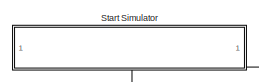
[diagram: root canvas - part 1/3, top left region]
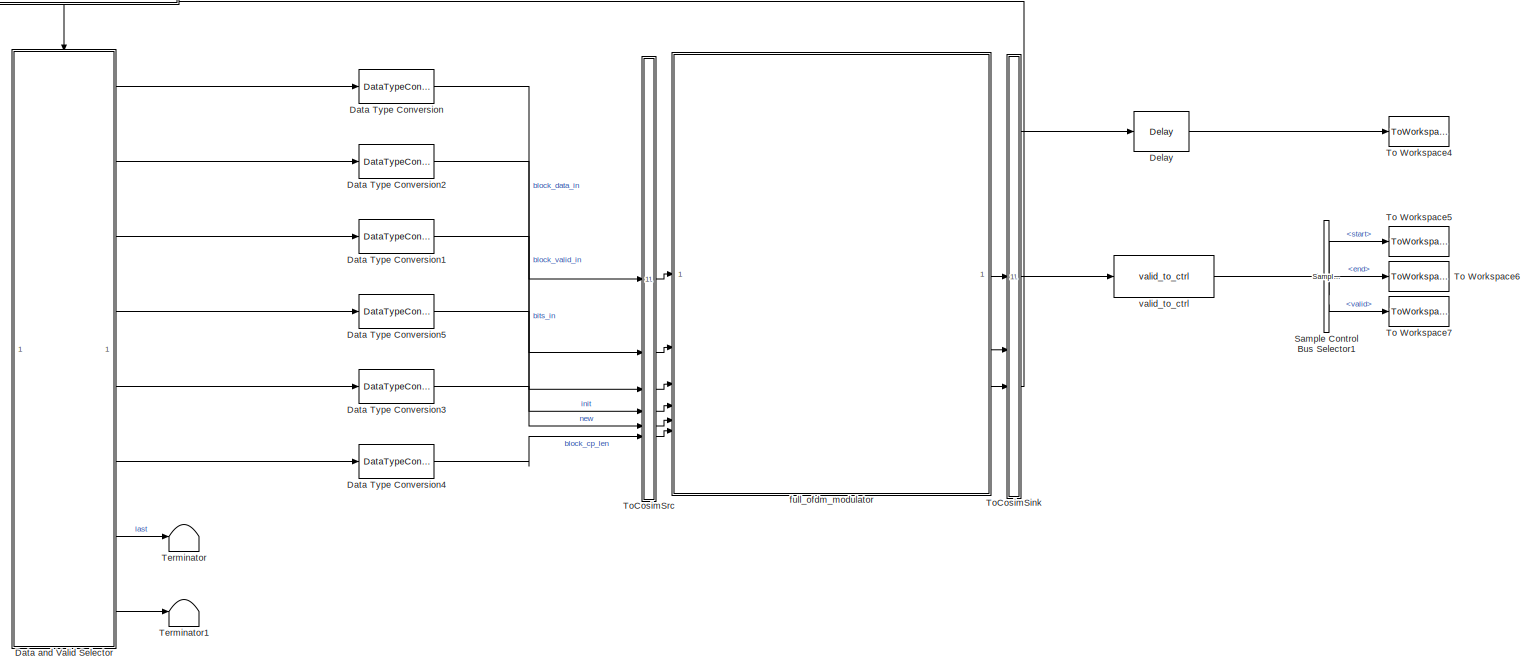
[diagram: root canvas - part 2/3, full width, top band]
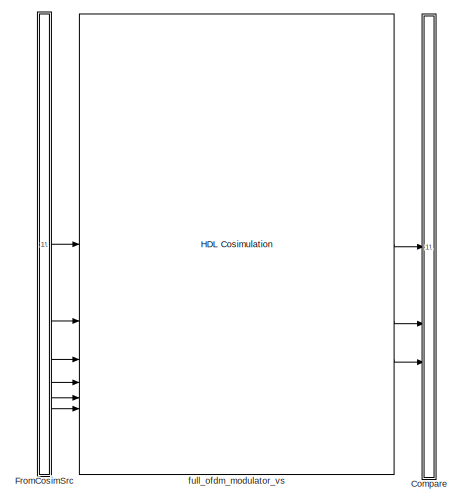
[diagram: root canvas - part 3/3, bottom center region]
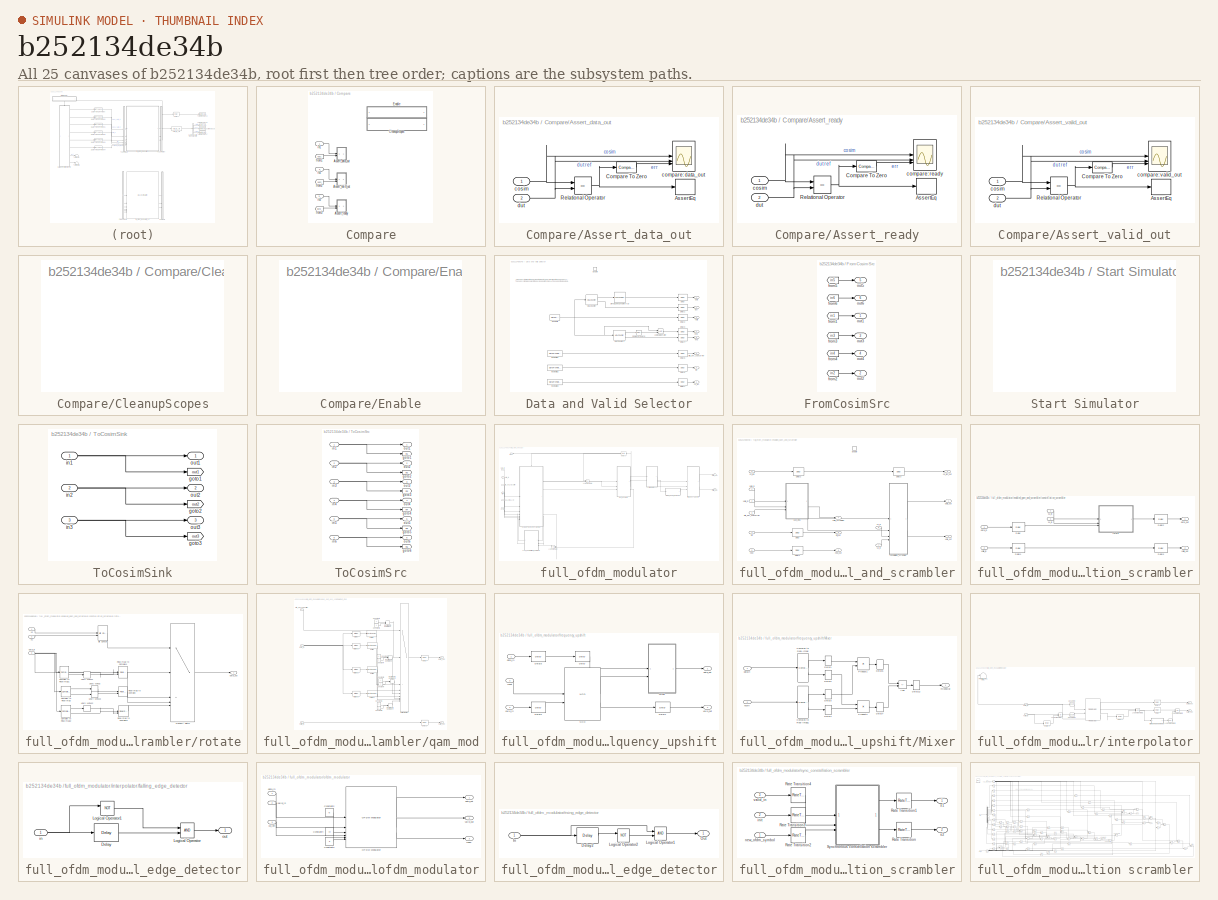
[diagram: thumbnail index - all 25 canvases of the model, root first then tree order]
MODEL slx_b252134de34b
KIND model
CONFIG AbsTol = auto
CONFIG EnableMultiTasking = off
CONFIG FixedStep = auto
CONFIG MaxStep = auto
CONFIG MinStep = auto
CONFIG RelTol = 1e-3
CONFIG SampleTimeConstraint = Unconstrained
CONFIG SolverName = VariableStepAuto
CONFIG StartTime = 0.0
CONFIG StopTime = 10.0
BLOCK [SubSystem] Compare
BLOCK [SubSystem] Compare/Assert_data_out
  LibrarySourceBlock = hdlmdlgenlib/AssertEq
BLOCK [Assertion] Compare/Assert_data_out/AssertEq
BLOCK [Reference] Compare/Assert_data_out/Compare To Zero  REF=simulink/Logic and Bit
Operations/Compare
To Zero
  SourceBlock = simulink/Logic and Bit\nOperations/Compare\nTo Zero
  SourceType = Compare To Zero
BLOCK [RelationalOperator] Compare/Assert_data_out/Relational Operator
  InputSameDT = off
  Operator = ==
  OutDataTypeStr = boolean
BLOCK [Scope] Compare/Assert_data_out/compare: data_out
  Floating = off
  NumInputPorts = 3
  ScopeSpecificationString = Simulink.scopes.TimeScopeBlockCfg('CurrentConfiguration', extmgr.ConfigurationSet(extmgr.Configuration('Core','General UI',true,'MessageLogAutoOpenMode','for warn/fail messages','ShowCloseAll',true,'ShowBringAllForward',true),extmgr.Configuration('Core','Source UI',true,'PlaybackToolbar',true),extmgr.Configuration('Sources','WiredSimulink',true,'PointsPerSignal',50000,'DataLoggingDecimation','1','...<+3577ch>
BLOCK [Inport] Compare/Assert_data_out/cosim
BLOCK [Inport] Compare/Assert_data_out/dut
  Port = 2
BLOCK [SubSystem] Compare/Assert_ready
  LibrarySourceBlock = hdlmdlgenlib/AssertEq
BLOCK [Assertion] Compare/Assert_ready/AssertEq
BLOCK [Reference] Compare/Assert_ready/Compare To Zero  REF=simulink/Logic and Bit
Operations/Compare
To Zero
  SourceBlock = simulink/Logic and Bit\nOperations/Compare\nTo Zero
  SourceType = Compare To Zero
BLOCK [RelationalOperator] Compare/Assert_ready/Relational Operator
  InputSameDT = off
  Operator = ==
  OutDataTypeStr = boolean
BLOCK [Scope] Compare/Assert_ready/compare: ready
  Floating = off
  NumInputPorts = 3
  ScopeSpecificationString = Simulink.scopes.TimeScopeBlockCfg('CurrentConfiguration', extmgr.ConfigurationSet(extmgr.Configuration('Core','General UI',true,'MessageLogAutoOpenMode','for warn/fail messages','ShowCloseAll',true,'ShowBringAllForward',true),extmgr.Configuration('Core','Source UI',true,'PlaybackToolbar',true),extmgr.Configuration('Sources','WiredSimulink',true,'PointsPerSignal',50000,'DataLoggingDecimation','1','...<+3577ch>
BLOCK [Inport] Compare/Assert_ready/cosim
BLOCK [Inport] Compare/Assert_ready/dut
  Port = 2
BLOCK [SubSystem] Compare/Assert_valid_out
  LibrarySourceBlock = hdlmdlgenlib/AssertEq
BLOCK [Assertion] Compare/Assert_valid_out/AssertEq
BLOCK [Reference] Compare/Assert_valid_out/Compare To Zero  REF=simulink/Logic and Bit
Operations/Compare
To Zero
  SourceBlock = simulink/Logic and Bit\nOperations/Compare\nTo Zero
  SourceType = Compare To Zero
BLOCK [RelationalOperator] Compare/Assert_valid_out/Relational Operator
  InputSameDT = off
  Operator = ==
  OutDataTypeStr = boolean
BLOCK [Scope] Compare/Assert_valid_out/compare: valid_out
  Floating = off
  NumInputPorts = 3
  ScopeSpecificationString = Simulink.scopes.TimeScopeBlockCfg('CurrentConfiguration', extmgr.ConfigurationSet(extmgr.Configuration('Core','General UI',true,'MessageLogAutoOpenMode','for warn/fail messages','ShowCloseAll',true,'ShowBringAllForward',true),extmgr.Configuration('Core','Source UI',true,'PlaybackToolbar',true),extmgr.Configuration('Sources','WiredSimulink',true,'PointsPerSignal',50000,'DataLoggingDecimation','1','...<+3553ch>
BLOCK [Inport] Compare/Assert_valid_out/cosim
BLOCK [Inport] Compare/Assert_valid_out/dut
  Port = 2
BLOCK [SubSystem] Compare/CleanupScopes
  OpenFcn = blkName = gcb; %self block\nidx = regexp(blkName, '/CleanupScopes$', 'once');\nblkParent = blkName(1:idx-1);\nblks=find_system(blkParent, 'LookUnderMasks', 'all','blocktype', 'Scope');\nfor itr = 1:length(blks)\n	 hScopeCfg = get_param(blks{itr},'ScopeConfiguration');\n	 hScopeCfg.Visible = ~ hScopeCfg.Visible;\nend\ndrawnow;
BLOCK [SubSystem] Compare/Enable
  OpenFcn = blkName = gcb;\nidx = regexp(blkName, '/Enable$', 'once');\nblkParent = blkName(1:idx-1);\nblks=find_system(blkParent, 'LookUnderMasks', 'all','blocktype', 'Assertion');\ne = get_param(blks{1}, 'Enabled');\nif strcmp(e, 'on'), f= 'off';, else, f = 'on';, end\nfor ii=1:length(blks), set_param(blks{ii}, 'Enabled', f);, end\nset_param(gcb, 'MaskDisplay',['fprintf(message(''hdlcoder:cosim:vnl_dblclick_assert...<+47ch>
BLOCK [From] Compare/from1
  GotoTag = out1
  TagVisibility = global
BLOCK [From] Compare/from2
  GotoTag = out2
  TagVisibility = global
BLOCK [From] Compare/from3
  GotoTag = out3
  TagVisibility = global
BLOCK [Inport] Compare/in1
BLOCK [Inport] Compare/in2
  Port = 2
BLOCK [Inport] Compare/in3
  Port = 3
BLOCK [DataTypeConversion] Data Type Conversion
  LockScale = on
  OutDataTypeStr = fixdt(0,12,0)
  RndMeth = Floor
  SaturateOnIntegerOverflow = off
BLOCK [DataTypeConversion] Data Type Conversion1
  LockScale = on
  OutDataTypeStr = fixdt(0,4,0)
  RndMeth = Floor
  SaturateOnIntegerOverflow = off
BLOCK [DataTypeConversion] Data Type Conversion2
  LockScale = on
  OutDataTypeStr = boolean
  RndMeth = Floor
  SaturateOnIntegerOverflow = off
BLOCK [DataTypeConversion] Data Type Conversion3
  LockScale = on
  OutDataTypeStr = boolean
  RndMeth = Floor
  SaturateOnIntegerOverflow = off
BLOCK [DataTypeConversion] Data Type Conversion4
  LockScale = on
  OutDataTypeStr = uint8
  RndMeth = Floor
  SaturateOnIntegerOverflow = off
BLOCK [DataTypeConversion] Data Type Conversion5
  LockScale = on
  OutDataTypeStr = boolean
  RndMeth = Floor
  SaturateOnIntegerOverflow = off
BLOCK [SubSystem] Data and Valid Selector
  TreatAsAtomicUnit = on
BLOCK [Reference] Data and Valid Selector/Compare To Zero  REF=hdlsllib/Logic and Bit
Operations/Compare
To Zero
  SourceBlock = hdlsllib/Logic and Bit\nOperations/Compare\nTo Zero
  SourceType = Compare To Zero
BLOCK [Delay] Data and Valid Selector/Delay
  DelayLength = 1
  InitialCondition = 0
  InputPortMap = u0
  UseCircularBuffer = on
  UserDataPersistent = on
BLOCK [Delay] Data and Valid Selector/Delay1
  DelayLength = 1
  InitialCondition = 0
  InputPortMap = u0
  UseCircularBuffer = on
  UserDataPersistent = on
BLOCK [Delay] Data and Valid Selector/Delay2
  DelayLength = 1
  InitialCondition = 0
  InputPortMap = u0
  UseCircularBuffer = on
  UserDataPersistent = on
BLOCK [Delay] Data and Valid Selector/Delay3
  DelayLength = 1
  InitialCondition = 0
  InputPortMap = u0
  UseCircularBuffer = on
  UserDataPersistent = on
BLOCK [Delay] Data and Valid Selector/Delay4
  DelayLength = 1
  InitialCondition = 0
  InputPortMap = u0
  UseCircularBuffer = on
  UserDataPersistent = on
BLOCK [Delay] Data and Valid Selector/Delay5
  DelayLength = 1
  InitialCondition = 0
  InputPortMap = u0
  UseCircularBuffer = on
  UserDataPersistent = on
BLOCK [Delay] Data and Valid Selector/Delay6
  DelayLength = 1
  InitialCondition = 0
  InputPortMap = u0
  UseCircularBuffer = on
  UserDataPersistent = on
BLOCK [Delay] Data and Valid Selector/Delay7
  DelayLength = 1
  InitialCondition = 0
  InputPortMap = u0
  UseCircularBuffer = on
  UserDataPersistent = on
BLOCK [LookupNDDirect] Data and Valid Selector/Direct Lookup Table (n-D)
  DiagnosticForOutOfRangeInput = Error
  NumberOfTableDimensions = 1
  Table = dataSymbols
  TableDataTypeStr = fixdt(0,12,0)
BLOCK [EnablePort] Data and Valid Selector/Enable
BLOCK [Reference] Data and Valid Selector/HDL Counter  REF=hdlsllib/Sources/HDL Counter
  SourceBlock = hdlsllib/Sources/HDL Counter
  SourceType = HDL Counter
BLOCK [Reference] Data and Valid Selector/HDL Counter1  REF=hdlsllib/Sources/HDL Counter
  SourceBlock = hdlsllib/Sources/HDL Counter
  SourceType = HDL Counter
BLOCK [Reference] Data and Valid Selector/Input Valid  REF=dspsrcs4/Signal From
Workspace
  SourceBlock = dspsrcs4/Signal From\nWorkspace
  SourceType = Signal From Workspace
BLOCK [Reference] Data and Valid Selector/Input Valid1  REF=dspsrcs4/Signal From
Workspace
  SourceBlock = dspsrcs4/Signal From\nWorkspace
  SourceType = Signal From Workspace
BLOCK [Reference] Data and Valid Selector/Input Valid2  REF=dspsrcs4/Signal From
Workspace
  SourceBlock = dspsrcs4/Signal From\nWorkspace
  SourceType = Signal From Workspace
BLOCK [Reference] Data and Valid Selector/Input Valid3  REF=dspsrcs4/Signal From
Workspace
  SourceBlock = dspsrcs4/Signal From\nWorkspace
  SourceType = Signal From Workspace
BLOCK [Logic] Data and Valid Selector/Logical Operator
  AllPortsSameDT = off
  OutDataTypeStr = boolean
BLOCK [Outport] Data and Valid Selector/bits_per_subcarrier
  Port = 3
  VectorParamsAs1DForOutWhenUnconnected = off
BLOCK [Outport] Data and Valid Selector/cp_len
  Port = 6
  VectorParamsAs1DForOutWhenUnconnected = off
BLOCK [Outport] Data and Valid Selector/data
  InitialOutput = 0
  VectorParamsAs1DForOutWhenUnconnected = off
BLOCK [Outport] Data and Valid Selector/end
  Port = 8
  VectorParamsAs1DForOutWhenUnconnected = off
BLOCK [Outport] Data and Valid Selector/init
  Port = 4
  VectorParamsAs1DForOutWhenUnconnected = off
BLOCK [Outport] Data and Valid Selector/last
  Port = 7
  VectorParamsAs1DForOutWhenUnconnected = off
BLOCK [Outport] Data and Valid Selector/new
  Port = 5
  VectorParamsAs1DForOutWhenUnconnected = off
BLOCK [Outport] Data and Valid Selector/valid
  InitialOutput = 0
  Port = 2
  VectorParamsAs1DForOutWhenUnconnected = off
BLOCK [Delay] Delay
  DelayLength = 1
  InitialCondition = 0
  InputPortMap = u0
  UseCircularBuffer = on
  UserDataPersistent = on
BLOCK [SubSystem] FromCosimSrc
BLOCK [From] FromCosimSrc/from1
  GotoTag = in1
  TagVisibility = global
BLOCK [From] FromCosimSrc/from2
  GotoTag = in2
  TagVisibility = global
BLOCK [From] FromCosimSrc/from3
  GotoTag = in3
  TagVisibility = global
BLOCK [From] FromCosimSrc/from4
  GotoTag = in4
  TagVisibility = global
BLOCK [From] FromCosimSrc/from5
  GotoTag = in5
  TagVisibility = global
BLOCK [From] FromCosimSrc/from6
  GotoTag = in6
  TagVisibility = global
BLOCK [Outport] FromCosimSrc/out1
BLOCK [Outport] FromCosimSrc/out2
  Port = 2
BLOCK [Outport] FromCosimSrc/out3
  Port = 3
BLOCK [Outport] FromCosimSrc/out4
  Port = 4
BLOCK [Outport] FromCosimSrc/out5
  Port = 5
BLOCK [Outport] FromCosimSrc/out6
  Port = 6
BLOCK [Reference] Sample Control Bus Selector1  REF=whdlutilities/Sample Control
Bus Selector
  SourceBlock = whdlutilities/Sample Control\nBus Selector
BLOCK [SubSystem] Start Simulator
  OpenFcn = cosimDirName = pwd;\ncd 'hdl_prj/hdlsrc/HDLModulatorFull';\n[s,r] = system('vivado -mode batch -source gm_HDLModulatorFull_vs.tcl','-echo');\ncd (cosimDirName);\nclear cosimDirName;\nif s\n   error('Failed to create Vivado HDL design DLL using script gm_HDLModulatorFull_vs.tcl.');\nend
BLOCK [Terminator] Terminator
BLOCK [Terminator] Terminator1
BLOCK [ToWorkspace] To Workspace4
  MaxDataPoints = inf
  SampleTime = 1/fs
  Save2DSignal = 2-D array (concatenate along first dimension)
  VariableName = dataOut
BLOCK [ToWorkspace] To Workspace5
  MaxDataPoints = inf
  SampleTime = 1/fs
  Save2DSignal = 2-D array (concatenate along first dimension)
  VariableName = startOut
BLOCK [ToWorkspace] To Workspace6
  MaxDataPoints = inf
  SampleTime = 1/fs
  Save2DSignal = 2-D array (concatenate along first dimension)
  VariableName = endOut
BLOCK [ToWorkspace] To Workspace7
  MaxDataPoints = inf
  SampleTime = 1/fs
  Save2DSignal = 2-D array (concatenate along first dimension)
  VariableName = validOut
BLOCK [SubSystem] ToCosimSink
BLOCK [Goto] ToCosimSink/goto1
  GotoTag = out1
  TagVisibility = global
BLOCK [Goto] ToCosimSink/goto2
  GotoTag = out2
  TagVisibility = global
BLOCK [Goto] ToCosimSink/goto3
  GotoTag = out3
  TagVisibility = global
BLOCK [Inport] ToCosimSink/in1
BLOCK [Inport] ToCosimSink/in2
  Port = 2
BLOCK [Inport] ToCosimSink/in3
  Port = 3
BLOCK [Outport] ToCosimSink/out1
BLOCK [Outport] ToCosimSink/out2
  Port = 2
BLOCK [Outport] ToCosimSink/out3
  Port = 3
BLOCK [SubSystem] ToCosimSrc
BLOCK [Goto] ToCosimSrc/goto1
  GotoTag = in1
  TagVisibility = global
BLOCK [Goto] ToCosimSrc/goto2
  GotoTag = in2
  TagVisibility = global
BLOCK [Goto] ToCosimSrc/goto3
  GotoTag = in3
  TagVisibility = global
BLOCK [Goto] ToCosimSrc/goto4
  GotoTag = in4
  TagVisibility = global
BLOCK [Goto] ToCosimSrc/goto5
  GotoTag = in5
  TagVisibility = global
BLOCK [Goto] ToCosimSrc/goto6
  GotoTag = in6
  TagVisibility = global
BLOCK [Inport] ToCosimSrc/in1
BLOCK [Inport] ToCosimSrc/in2
  Port = 2
BLOCK [Inport] ToCosimSrc/in3
  Port = 3
BLOCK [Inport] ToCosimSrc/in4
  Port = 4
BLOCK [Inport] ToCosimSrc/in5
  Port = 5
BLOCK [Inport] ToCosimSrc/in6
  Port = 6
BLOCK [Outport] ToCosimSrc/out1
BLOCK [Outport] ToCosimSrc/out2
  Port = 2
BLOCK [Outport] ToCosimSrc/out3
  Port = 3
BLOCK [Outport] ToCosimSrc/out4
  Port = 4
BLOCK [Outport] ToCosimSrc/out5
  Port = 5
BLOCK [Outport] ToCosimSrc/out6
  Port = 6
BLOCK [SubSystem] full_ofdm_modulator
BLOCK [Delay] full_ofdm_modulator/Delay1
  DelayLength = 1
  InitialCondition = 0
  InputPortMap = u0
  NameLocation = top
  UseCircularBuffer = on
  UserDataPersistent = on
BLOCK [Logic] full_ofdm_modulator/Logical Operator
  AllPortsSameDT = off
  IconShape = distinctive
  NameLocation = top
  OutDataTypeStr = boolean
BLOCK [Logic] full_ofdm_modulator/Logical Operator3
  AllPortsSameDT = off
  IconShape = distinctive
  OutDataTypeStr = boolean
BLOCK [Inport] full_ofdm_modulator/bits_per_subcarrier
  OutDataTypeStr = fixdt(0, 4, 0)
  Port = 3
  SampleTime = 2e-08
BLOCK [Inport] full_ofdm_modulator/cp_len
  OutDataTypeStr = uint8
  Port = 6
  SampleTime = 2e-08
BLOCK [Inport] full_ofdm_modulator/data_in
  OutDataTypeStr = fixdt(0, 12, 0)
  SampleTime = 2e-08
BLOCK [Outport] full_ofdm_modulator/data_out
  SampleTime = 1e-08
BLOCK [SubSystem] full_ofdm_modulator/enabled_qam_and_scrambler
BLOCK [Delay] full_ofdm_modulator/enabled_qam_and_scrambler/Delay
  DelayLength = 1
  InitialCondition = 0
  InputPortMap = u0
  UseCircularBuffer = on
  UserDataPersistent = on
BLOCK [Delay] full_ofdm_modulator/enabled_qam_and_scrambler/Delay1
  DelayLength = 1
  InitialCondition = 0
  InputPortMap = u0
  UseCircularBuffer = on
  UserDataPersistent = on
BLOCK [Delay] full_ofdm_modulator/enabled_qam_and_scrambler/Delay2
  DelayLength = 1
  InitialCondition = 0
  InputPortMap = u0
  UseCircularBuffer = on
  UserDataPersistent = on
BLOCK [Delay] full_ofdm_modulator/enabled_qam_and_scrambler/Delay3
  DelayLength = 3
  InitialCondition = 0
  InputPortMap = u0
  UseCircularBuffer = on
  UserDataPersistent = on
BLOCK [EnablePort] full_ofdm_modulator/enabled_qam_and_scrambler/Enable
  OutDataTypeStr = boolean
BLOCK [Inport] full_ofdm_modulator/enabled_qam_and_scrambler/bits_per_subcarrier
  OutDataTypeStr = fixdt(0, 4, 0)
  Port = 3
  PortDimensions = 1
  SampleTime = 2e-08
BLOCK [SubSystem] full_ofdm_modulator/enabled_qam_and_scrambler/constellation_scrambler
BLOCK [Delay] full_ofdm_modulator/enabled_qam_and_scrambler/constellation_scrambler/Delay
  InitialCondition = 0
  InputPortMap = u0
  UseCircularBuffer = on
  UserDataPersistent = on
BLOCK [Delay] full_ofdm_modulator/enabled_qam_and_scrambler/constellation_scrambler/Delay1
  InitialCondition = 0
  InputPortMap = u0
  UseCircularBuffer = on
  UserDataPersistent = on
BLOCK [Delay] full_ofdm_modulator/enabled_qam_and_scrambler/constellation_scrambler/Delay2
  DelayLength = 1
  InitialCondition = 0
  InputPortMap = u0
  UseCircularBuffer = on
  UserDataPersistent = on
BLOCK [Delay] full_ofdm_modulator/enabled_qam_and_scrambler/constellation_scrambler/Delay3
  DelayLength = 1
  InitialCondition = 0
  InputPortMap = u0
  UseCircularBuffer = on
  UserDataPersistent = on
BLOCK [Inport] full_ofdm_modulator/enabled_qam_and_scrambler/constellation_scrambler/data_in
  OutDataTypeStr = fixdt(1, 16, 14)
  SampleTime = 2e-08
  SignalType = complex
BLOCK [Outport] full_ofdm_modulator/enabled_qam_and_scrambler/constellation_scrambler/data_out
  InitialOutput = 0
  SampleTime = 2e-08
BLOCK [SubSystem] full_ofdm_modulator/enabled_qam_and_scrambler/constellation_scrambler/rotate
BLOCK [Reference] full_ofdm_modulator/enabled_qam_and_scrambler/constellation_scrambler/rotate/Bit Concat  REF=hdlsllib/Logic and Bit
Operations/Bit Concat
  SourceBlock = hdlsllib/Logic and Bit\nOperations/Bit Concat
  SourceType = Bit Concat
BLOCK [ComplexToRealImag] full_ofdm_modulator/enabled_qam_and_scrambler/constellation_scrambler/rotate/Complex to Real-Imag
BLOCK [ComplexToRealImag] full_ofdm_modulator/enabled_qam_and_scrambler/constellation_scrambler/rotate/Complex to Real-Imag1
BLOCK [ComplexToRealImag] full_ofdm_modulator/enabled_qam_and_scrambler/constellation_scrambler/rotate/Complex to Real-Imag2
BLOCK [MultiPortSwitch] full_ofdm_modulator/enabled_qam_and_scrambler/constellation_scrambler/rotate/Multiport Switch
  DataPortOrder = Zero-based contiguous
  InputSameDT = off
  Inputs = 4
  OutDataTypeStr = fixdt(1, 16, 14)
  SaturateOnIntegerOverflow = off
  zeroidx = on
BLOCK [RealImagToComplex] full_ofdm_modulator/enabled_qam_and_scrambler/constellation_scrambler/rotate/Real-Imag to Complex
BLOCK [RealImagToComplex] full_ofdm_modulator/enabled_qam_and_scrambler/constellation_scrambler/rotate/Real-Imag to Complex1
BLOCK [RealImagToComplex] full_ofdm_modulator/enabled_qam_and_scrambler/constellation_scrambler/rotate/Real-Imag to Complex2
BLOCK [UnaryMinus] full_ofdm_modulator/enabled_qam_and_scrambler/constellation_scrambler/rotate/Unary Minus
BLOCK [UnaryMinus] full_ofdm_modulator/enabled_qam_and_scrambler/constellation_scrambler/rotate/Unary Minus1
BLOCK [UnaryMinus] full_ofdm_modulator/enabled_qam_and_scrambler/constellation_scrambler/rotate/Unary Minus2
BLOCK [UnaryMinus] full_ofdm_modulator/enabled_qam_and_scrambler/constellation_scrambler/rotate/Unary Minus3
BLOCK [Inport] full_ofdm_modulator/enabled_qam_and_scrambler/constellation_scrambler/rotate/data_in
  OutDataTypeStr = fixdt(1, 16, 14)
  Port = 3
  PortDimensions = 1
  SampleTime = 2e-08
  SignalType = complex
BLOCK [Outport] full_ofdm_modulator/enabled_qam_and_scrambler/constellation_scrambler/rotate/data_out
  InitialOutput = 0
  SampleTime = 2e-08
BLOCK [Inport] full_ofdm_modulator/enabled_qam_and_scrambler/constellation_scrambler/rotate/s1
  OutDataTypeStr = boolean
  Port = 2
  PortDimensions = 1
  SampleTime = 2e-08
BLOCK [Inport] full_ofdm_modulator/enabled_qam_and_scrambler/constellation_scrambler/rotate/s2
  OutDataTypeStr = boolean
  PortDimensions = 1
  SampleTime = 2e-08
BLOCK [Inport] full_ofdm_modulator/enabled_qam_and_scrambler/constellation_scrambler/s1_in
  OutDataTypeStr = boolean
  Port = 3
  SampleTime = 2e-08
BLOCK [Inport] full_ofdm_modulator/enabled_qam_and_scrambler/constellation_scrambler/s2_in
  OutDataTypeStr = boolean
  Port = 4
  SampleTime = 2e-08
BLOCK [Inport] full_ofdm_modulator/enabled_qam_and_scrambler/constellation_scrambler/valid_in
  OutDataTypeStr = boolean
  Port = 2
  SampleTime = 2e-08
BLOCK [Outport] full_ofdm_modulator/enabled_qam_and_scrambler/constellation_scrambler/valid_out
  InitialOutput = 0
  Port = 2
  SampleTime = 2e-08
BLOCK [Inport] full_ofdm_modulator/enabled_qam_and_scrambler/cp_len
  OutDataTypeStr = uint8
  Port = 6
  PortDimensions = 1
  SampleTime = 2e-08
BLOCK [Outport] full_ofdm_modulator/enabled_qam_and_scrambler/cp_len_out
  InitialOutput = 0
  Port = 3
  SampleTime = 2e-08
  VectorParamsAs1DForOutWhenUnconnected = off
BLOCK [Inport] full_ofdm_modulator/enabled_qam_and_scrambler/data_in
  OutDataTypeStr = fixdt(0, 12, 0)
  PortDimensions = 1
  SampleTime = 2e-08
BLOCK [Outport] full_ofdm_modulator/enabled_qam_and_scrambler/data_out
  InitialOutput = 0
  SampleTime = 2e-08
  VectorParamsAs1DForOutWhenUnconnected = off
BLOCK [Inport] full_ofdm_modulator/enabled_qam_and_scrambler/init
  OutDataTypeStr = boolean
  Port = 4
  PortDimensions = [1 13]
  SampleTime = 2e-08
BLOCK [Outport] full_ofdm_modulator/enabled_qam_and_scrambler/init_out
  InitialOutput = 0
  Port = 5
  SampleTime = 2e-08
  VectorParamsAs1DForOutWhenUnconnected = off
BLOCK [Inport] full_ofdm_modulator/enabled_qam_and_scrambler/new
  OutDataTypeStr = boolean
  Port = 5
  PortDimensions = 1
  SampleTime = 2e-08
BLOCK [Outport] full_ofdm_modulator/enabled_qam_and_scrambler/new_out
  InitialOutput = 0
  Port = 6
  SampleTime = 2e-08
  VectorParamsAs1DForOutWhenUnconnected = off
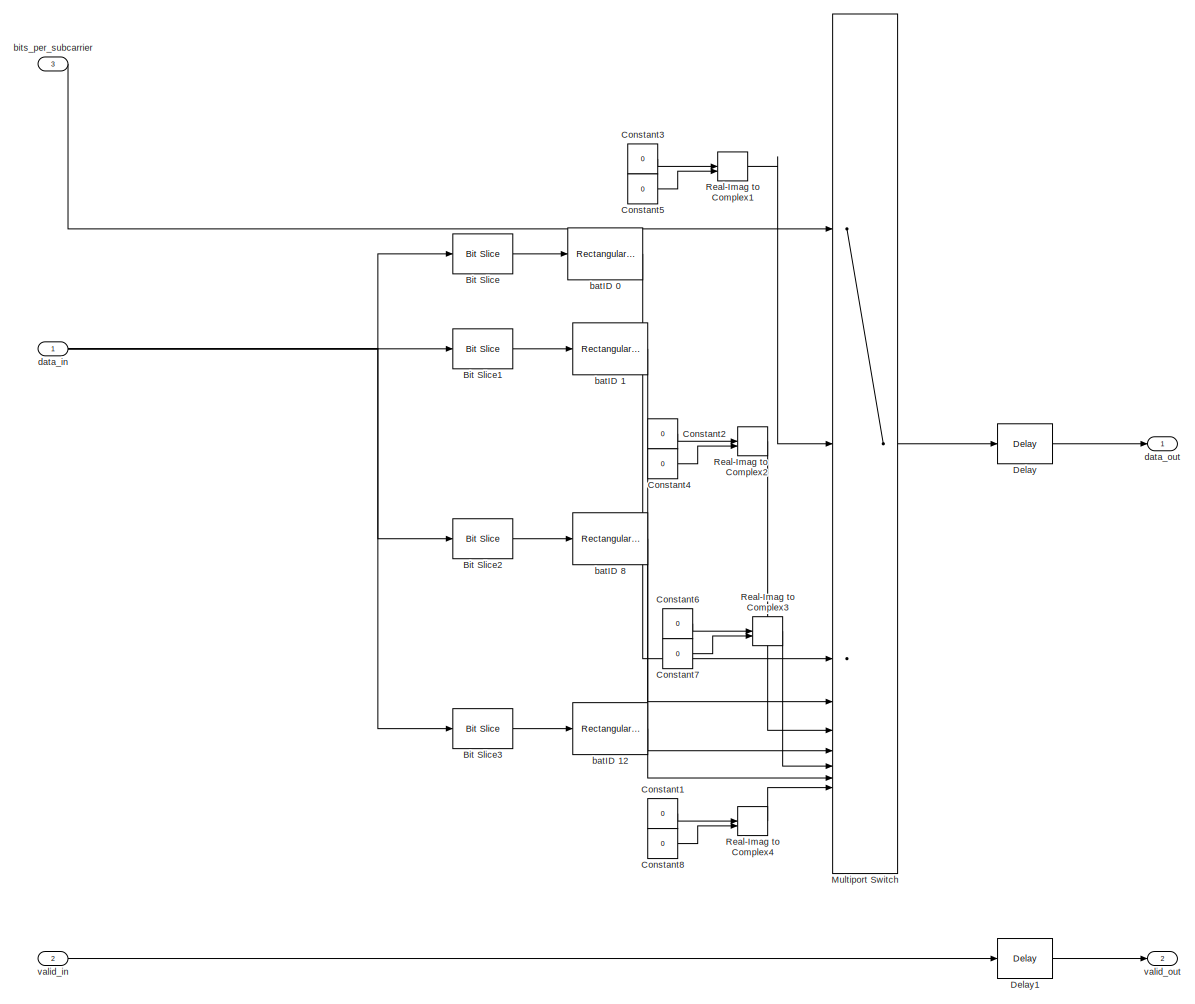
[diagram: full_ofdm_modulator/enabled_qam_and_scrambler/qam_mod - part 1/1, most of the canvas]
BLOCK [SubSystem] full_ofdm_modulator/enabled_qam_and_scrambler/qam_mod
BLOCK [Reference] full_ofdm_modulator/enabled_qam_and_scrambler/qam_mod/Bit Slice  REF=hdlsllib/Logic and Bit
Operations/Bit Slice
  SourceBlock = hdlsllib/Logic and Bit\nOperations/Bit Slice
  SourceType = Bit Slice
BLOCK [Reference] full_ofdm_modulator/enabled_qam_and_scrambler/qam_mod/Bit Slice1  REF=hdlsllib/Logic and Bit
Operations/Bit Slice
  SourceBlock = hdlsllib/Logic and Bit\nOperations/Bit Slice
  SourceType = Bit Slice
BLOCK [Reference] full_ofdm_modulator/enabled_qam_and_scrambler/qam_mod/Bit Slice2  REF=hdlsllib/Logic and Bit
Operations/Bit Slice
  SourceBlock = hdlsllib/Logic and Bit\nOperations/Bit Slice
  SourceType = Bit Slice
BLOCK [Reference] full_ofdm_modulator/enabled_qam_and_scrambler/qam_mod/Bit Slice3  REF=hdlsllib/Logic and Bit
Operations/Bit Slice
  SourceBlock = hdlsllib/Logic and Bit\nOperations/Bit Slice
  SourceType = Bit Slice
BLOCK [Constant] full_ofdm_modulator/enabled_qam_and_scrambler/qam_mod/Constant1
  LockScale = on
  OutDataTypeStr = fixdt(1, 16, 14)
  SampleTime = -1
  Value = 0
BLOCK [Constant] full_ofdm_modulator/enabled_qam_and_scrambler/qam_mod/Constant2
  LockScale = on
  OutDataTypeStr = fixdt(1, 16, 14)
  SampleTime = -1
  Value = 0
BLOCK [Constant] full_ofdm_modulator/enabled_qam_and_scrambler/qam_mod/Constant3
  LockScale = on
  OutDataTypeStr = fixdt(1, 16, 14)
  SampleTime = -1
  Value = 0
BLOCK [Constant] full_ofdm_modulator/enabled_qam_and_scrambler/qam_mod/Constant4
  LockScale = on
  OutDataTypeStr = fixdt(1, 16, 14)
  SampleTime = -1
  Value = 0
BLOCK [Constant] full_ofdm_modulator/enabled_qam_and_scrambler/qam_mod/Constant5
  LockScale = on
  OutDataTypeStr = fixdt(1, 16, 14)
  SampleTime = -1
  Value = 0
BLOCK [Constant] full_ofdm_modulator/enabled_qam_and_scrambler/qam_mod/Constant6
  LockScale = on
  OutDataTypeStr = fixdt(1, 16, 14)
  SampleTime = -1
  Value = 0
BLOCK [Constant] full_ofdm_modulator/enabled_qam_and_scrambler/qam_mod/Constant7
  LockScale = on
  OutDataTypeStr = fixdt(1, 16, 14)
  SampleTime = -1
  Value = 0
BLOCK [Constant] full_ofdm_modulator/enabled_qam_and_scrambler/qam_mod/Constant8
  LockScale = on
  OutDataTypeStr = fixdt(1, 16, 14)
  SampleTime = -1
  Value = 0
BLOCK [Delay] full_ofdm_modulator/enabled_qam_and_scrambler/qam_mod/Delay
  DelayLength = 1
  InitialCondition = 0
  InputPortMap = u0
  UseCircularBuffer = on
  UserDataPersistent = on
BLOCK [Delay] full_ofdm_modulator/enabled_qam_and_scrambler/qam_mod/Delay1
  DelayLength = 1
  InitialCondition = 0
  InputPortMap = u0
  UseCircularBuffer = on
  UserDataPersistent = on
BLOCK [MultiPortSwitch] full_ofdm_modulator/enabled_qam_and_scrambler/qam_mod/Multiport Switch
  DataPortOrder = Zero-based contiguous
  Inputs = 8
  OutDataTypeStr = fixdt(1, 16, 14)
  SaturateOnIntegerOverflow = off
  zeroidx = on
BLOCK [RealImagToComplex] full_ofdm_modulator/enabled_qam_and_scrambler/qam_mod/Real-Imag to Complex1
BLOCK [RealImagToComplex] full_ofdm_modulator/enabled_qam_and_scrambler/qam_mod/Real-Imag to Complex2
BLOCK [RealImagToComplex] full_ofdm_modulator/enabled_qam_and_scrambler/qam_mod/Real-Imag to Complex3
BLOCK [RealImagToComplex] full_ofdm_modulator/enabled_qam_and_scrambler/qam_mod/Real-Imag to Complex4
BLOCK [Reference] full_ofdm_modulator/enabled_qam_and_scrambler/qam_mod/batID 0  REF=commdigbbndam3/Rectangular QAM
Modulator
Baseband
  LibrarySourceBlock = commhdldigbbndam/Rectangular QAM\nModulator\nBaseband
  SourceBlock = commdigbbndam3/Rectangular QAM\nModulator\nBaseband
  SourceType = Rectangular QAM Modulator Baseband
BLOCK [Reference] full_ofdm_modulator/enabled_qam_and_scrambler/qam_mod/batID 1  REF=commdigbbndam3/Rectangular QAM
Modulator
Baseband
  LibrarySourceBlock = commhdldigbbndam/Rectangular QAM\nModulator\nBaseband
  SourceBlock = commdigbbndam3/Rectangular QAM\nModulator\nBaseband
  SourceType = Rectangular QAM Modulator Baseband
BLOCK [Reference] full_ofdm_modulator/enabled_qam_and_scrambler/qam_mod/batID 12  REF=commdigbbndam3/Rectangular QAM
Modulator
Baseband
  LibrarySourceBlock = commhdldigbbndam/Rectangular QAM\nModulator\nBaseband
  SourceBlock = commdigbbndam3/Rectangular QAM\nModulator\nBaseband
  SourceType = Rectangular QAM Modulator Baseband
BLOCK [Reference] full_ofdm_modulator/enabled_qam_and_scrambler/qam_mod/batID 8  REF=commdigbbndam3/Rectangular QAM
Modulator
Baseband
  LibrarySourceBlock = commhdldigbbndam/Rectangular QAM\nModulator\nBaseband
  SourceBlock = commdigbbndam3/Rectangular QAM\nModulator\nBaseband
  SourceType = Rectangular QAM Modulator Baseband
BLOCK [Inport] full_ofdm_modulator/enabled_qam_and_scrambler/qam_mod/bits_per_subcarrier
  OutDataTypeStr = fixdt(0, 4, 0)
  Port = 3
  SampleTime = 2e-08
BLOCK [Inport] full_ofdm_modulator/enabled_qam_and_scrambler/qam_mod/data_in
  OutDataTypeStr = fixdt(0, 12, 0)
  SampleTime = 2e-08
BLOCK [Outport] full_ofdm_modulator/enabled_qam_and_scrambler/qam_mod/data_out
  InitialOutput = 0
  SampleTime = 2e-08
BLOCK [Inport] full_ofdm_modulator/enabled_qam_and_scrambler/qam_mod/valid_in
  OutDataTypeStr = boolean
  Port = 2
  SampleTime = 2e-08
BLOCK [Outport] full_ofdm_modulator/enabled_qam_and_scrambler/qam_mod/valid_out
  InitialOutput = 0
  Port = 2
  SampleTime = 2e-08
BLOCK [Inport] full_ofdm_modulator/enabled_qam_and_scrambler/s1_in
  OutDataTypeStr = boolean
  Port = 8
  PortDimensions = 1
  SampleTime = 2e-08
BLOCK [Inport] full_ofdm_modulator/enabled_qam_and_scrambler/s2_in
  OutDataTypeStr = boolean
  Port = 7
  PortDimensions = 1
  SampleTime = 2e-08
BLOCK [Inport] full_ofdm_modulator/enabled_qam_and_scrambler/valid_in
  OutDataTypeStr = boolean
  Port = 2
  PortDimensions = 1
  SampleTime = 2e-08
BLOCK [Outport] full_ofdm_modulator/enabled_qam_and_scrambler/valid_out
  InitialOutput = 0
  Port = 2
  SampleTime = 2e-08
  VectorParamsAs1DForOutWhenUnconnected = off
BLOCK [Outport] full_ofdm_modulator/enabled_qam_and_scrambler/valid_scrambler
  InitialOutput = 0
  Port = 4
  SampleTime = 2e-08
  VectorParamsAs1DForOutWhenUnconnected = off
BLOCK [SubSystem] full_ofdm_modulator/frequency_upshift
BLOCK [Delay] full_ofdm_modulator/frequency_upshift/Delay
  DelayLength = 6
  InitialCondition = 0
  InputPortMap = u0
  UseCircularBuffer = on
  UserDataPersistent = on
BLOCK [Delay] full_ofdm_modulator/frequency_upshift/Delay1
  DelayLength = 4
  InitialCondition = 0
  InputPortMap = u0
  UseCircularBuffer = on
  UserDataPersistent = on
BLOCK [Delay] full_ofdm_modulator/frequency_upshift/Delay2
  DelayLength = 1
  InitialCondition = 0
  InputPortMap = u0
  UseCircularBuffer = on
  UserDataPersistent = on
BLOCK [Delay] full_ofdm_modulator/frequency_upshift/Delay3
  DelayLength = 1
  InitialCondition = 0
  InputPortMap = u0
  UseCircularBuffer = on
  UserDataPersistent = on
BLOCK [SubSystem] full_ofdm_modulator/frequency_upshift/Mixer
BLOCK [Sum] full_ofdm_modulator/frequency_upshift/Mixer/Add
  AccumDataTypeStr = Inherit: Same as first input
  IconShape = rectangular
  InputSameDT = on
  Inputs = +-
  OutDataTypeStr = fixdt(1, 16, 14)
BLOCK [ComplexToRealImag] full_ofdm_modulator/frequency_upshift/Mixer/Complex to Real-Imag
BLOCK [ComplexToRealImag] full_ofdm_modulator/frequency_upshift/Mixer/Complex to Real-Imag1
BLOCK [Delay] full_ofdm_modulator/frequency_upshift/Mixer/Delay1
  InitialCondition = 0
  InputPortMap = u0
BLOCK [Delay] full_ofdm_modulator/frequency_upshift/Mixer/Delay12
  DelayLength = 1
  InitialCondition = 0
  InputPortMap = u0
BLOCK [Delay] full_ofdm_modulator/frequency_upshift/Mixer/Delay2
  InitialCondition = 0
  InputPortMap = u0
BLOCK [Delay] full_ofdm_modulator/frequency_upshift/Mixer/Delay3
  InitialCondition = 0
  InputPortMap = u0
BLOCK [Delay] full_ofdm_modulator/frequency_upshift/Mixer/Delay4
  InitialCondition = 0
  InputPortMap = u0
BLOCK [Delay] full_ofdm_modulator/frequency_upshift/Mixer/Delay6
  DelayLength = 1
  InitialCondition = 0
  InputPortMap = u0
BLOCK [Delay] full_ofdm_modulator/frequency_upshift/Mixer/Delay7
  DelayLength = 1
  InitialCondition = 0
  InputPortMap = u0
BLOCK [Product] full_ofdm_modulator/frequency_upshift/Mixer/Product1
  OutDataTypeStr = fixdt(1, 16, 14)
BLOCK [Product] full_ofdm_modulator/frequency_upshift/Mixer/Product2
  OutDataTypeStr = fixdt(1, 16, 14)
BLOCK [Inport] full_ofdm_modulator/frequency_upshift/Mixer/dataIn
  OutDataTypeStr = fixdt(1, 16, 14)
  PortDimensions = 1
  SampleTime = 1e-08
  SignalType = complex
BLOCK [Outport] full_ofdm_modulator/frequency_upshift/Mixer/mixedOut
  SampleTime = 1e-08
BLOCK [Inport] full_ofdm_modulator/frequency_upshift/Mixer/ncoIn
  OutDataTypeStr = fixdt(1, 16, 14)
  Port = 2
  PortDimensions = 1
  SampleTime = 1e-08
  SignalType = complex
BLOCK [Reference] full_ofdm_modulator/frequency_upshift/NCO  REF=dsphdlsigops2/NCO
  SourceBlock = dsphdlsigops2/NCO
  SourceType = NCO
BLOCK [Inport] full_ofdm_modulator/frequency_upshift/data_in
  OutDataTypeStr = fixdt(1, 16, 14)
  SampleTime = 1e-08
  SignalType = complex
BLOCK [Outport] full_ofdm_modulator/frequency_upshift/data_out
  SampleTime = 1e-08
BLOCK [Inport] full_ofdm_modulator/frequency_upshift/reset
  OutDataTypeStr = boolean
  Port = 3
  SampleTime = 1e-08
BLOCK [Inport] full_ofdm_modulator/frequency_upshift/valid_in
  OutDataTypeStr = boolean
  Port = 2
  SampleTime = 1e-08
BLOCK [Outport] full_ofdm_modulator/frequency_upshift/valid_out
  Port = 2
  SampleTime = 1e-08
BLOCK [Inport] full_ofdm_modulator/init
  OutDataTypeStr = boolean
  Port = 4
  PortDimensions = [1 13]
  SampleTime = 2e-08
BLOCK [SubSystem] full_ofdm_modulator/interpolator
BLOCK [Delay] full_ofdm_modulator/interpolator/Delay
  DelayLength = 1
  InitialCondition = 0
  InputPortMap = u0
  UseCircularBuffer = on
  UserDataPersistent = on
BLOCK [Delay] full_ofdm_modulator/interpolator/Delay1
  DelayLength = interpolatorDelay
  InitialCondition = 0
  InputPortMap = u0
  UseCircularBuffer = on
  UserDataPersistent = on
BLOCK [Delay] full_ofdm_modulator/interpolator/Delay3
  DelayLength = (interpolatorDelay+1)/2
  InitialCondition = 0
  InputPortMap = u0
  UseCircularBuffer = on
  UserDataPersistent = on
BLOCK [Delay] full_ofdm_modulator/interpolator/Delay4
  DelayLength = 1
  InitialCondition = 0
  InputPortMap = u0
  UseCircularBuffer = on
  UserDataPersistent = on
BLOCK [Reference] full_ofdm_modulator/interpolator/FIR Interpolator  REF=dsphdlfiltering2/FIR Interpolator
  SourceBlock = dsphdlfiltering2/FIR Interpolator
  SourceType = FIR Interpolator
BLOCK [Terminator] full_ofdm_modulator/interpolator/FIR Interpolator_term2
BLOCK [Logic] full_ofdm_modulator/interpolator/Logical Operator
  AllPortsSameDT = off
  IconShape = distinctive
  Operator = OR
  OutDataTypeStr = boolean
BLOCK [Logic] full_ofdm_modulator/interpolator/Logical Operator1
  AllPortsSameDT = off
  IconShape = distinctive
  OutDataTypeStr = boolean
BLOCK [Logic] full_ofdm_modulator/interpolator/Logical Operator2
  AllPortsSameDT = off
  IconShape = distinctive
  OutDataTypeStr = boolean
BLOCK [Logic] full_ofdm_modulator/interpolator/Logical Operator3
  AllPortsSameDT = off
  IconShape = distinctive
  Operator = NOT
  OutDataTypeStr = boolean
BLOCK [Reference] full_ofdm_modulator/interpolator/Upsample  REF=dspsigops/Upsample
  LibrarySourceBlock = dsphdlsupportsigops/Upsample
  SourceBlock = dspsigops/Upsample
  SourceType = Upsample
  UserDataPersistent = on
BLOCK [Reference] full_ofdm_modulator/interpolator/Upsample1  REF=dspsigops/Upsample
  LibrarySourceBlock = dsphdlsupportsigops/Upsample
  SourceBlock = dspsigops/Upsample
  SourceType = Upsample
  UserDataPersistent = on
BLOCK [Inport] full_ofdm_modulator/interpolator/data_in
  OutDataTypeStr = fixdt(1, 16, 14)
  SampleTime = 2e-08
  SignalType = complex
BLOCK [Outport] full_ofdm_modulator/interpolator/data_out
  SampleTime = 1e-08
BLOCK [SubSystem] full_ofdm_modulator/interpolator/falling_edge_detector
BLOCK [Delay] full_ofdm_modulator/interpolator/falling_edge_detector/Delay
  DelayLength = 1
  InitialCondition = 0
  InputPortMap = u0
  UseCircularBuffer = on
  UserDataPersistent = on
BLOCK [Logic] full_ofdm_modulator/interpolator/falling_edge_detector/Logical Operator
  AllPortsSameDT = off
  IconShape = distinctive
  OutDataTypeStr = boolean
BLOCK [Logic] full_ofdm_modulator/interpolator/falling_edge_detector/Logical Operator1
  AllPortsSameDT = off
  IconShape = distinctive
  Operator = NOT
  OutDataTypeStr = boolean
BLOCK [Inport] full_ofdm_modulator/interpolator/falling_edge_detector/in
  OutDataTypeStr = boolean
  SampleTime = 1e-08
BLOCK [Outport] full_ofdm_modulator/interpolator/falling_edge_detector/out
  SampleTime = 1e-08
BLOCK [Inport] full_ofdm_modulator/interpolator/valid_in
  OutDataTypeStr = boolean
  Port = 2
  SampleTime = 2e-08
BLOCK [Outport] full_ofdm_modulator/interpolator/valid_out
  Port = 2
  SampleTime = 1e-08
BLOCK [Inport] full_ofdm_modulator/new_ofdm_sym
  OutDataTypeStr = boolean
  Port = 5
  SampleTime = 2e-08
BLOCK [SubSystem] full_ofdm_modulator/ofdm_modulator
BLOCK [Constant] full_ofdm_modulator/ofdm_modulator/Constant2
  LockScale = on
  OutDataTypeStr = fixdt(0,9,0)
  SampleTime = -1
  Value = N
BLOCK [Constant] full_ofdm_modulator/ofdm_modulator/Constant3
  LockScale = on
  OutDataTypeStr = fixdt(0,2,0)
  SampleTime = -1
  Value = 0
BLOCK [Constant] full_ofdm_modulator/ofdm_modulator/Constant4
  LockScale = on
  OutDataTypeStr = fixdt(0,4,0)
  SampleTime = -1
  Value = 11
BLOCK [Reference] full_ofdm_modulator/ofdm_modulator/OFDM Modulator  REF=whdlmod/OFDM Modulator
  SourceBlock = whdlmod/OFDM Modulator
  SourceType = OFDM Modulator
BLOCK [Inport] full_ofdm_modulator/ofdm_modulator/cp_len
  OutDataTypeStr = uint8
  Port = 3
  SampleTime = 2e-08
BLOCK [Inport] full_ofdm_modulator/ofdm_modulator/data_in
  OutDataTypeStr = fixdt(1, 16, 14)
  SampleTime = 2e-08
  SignalType = complex
BLOCK [Outport] full_ofdm_modulator/ofdm_modulator/data_out
  SampleTime = 2e-08
BLOCK [Outport] full_ofdm_modulator/ofdm_modulator/ready
  Port = 3
  SampleTime = 2e-08
BLOCK [Inport] full_ofdm_modulator/ofdm_modulator/valid_in
  OutDataTypeStr = boolean
  Port = 2
  SampleTime = 2e-08
BLOCK [Outport] full_ofdm_modulator/ofdm_modulator/valid_out
  Port = 2
  SampleTime = 2e-08
BLOCK [Outport] full_ofdm_modulator/ready
  Port = 3
  SampleTime = 2e-08
BLOCK [SubSystem] full_ofdm_modulator/rising_edge_detector
BLOCK [Delay] full_ofdm_modulator/rising_edge_detector/Delay2
  DelayLength = 1
  InitialCondition = 0
  InputPortMap = u0
  UseCircularBuffer = on
  UserDataPersistent = on
BLOCK [Inport] full_ofdm_modulator/rising_edge_detector/In
  OutDataTypeStr = boolean
  SampleTime = 1e-08
BLOCK [Logic] full_ofdm_modulator/rising_edge_detector/Logical Operator1
  AllPortsSameDT = off
  IconShape = distinctive
  OutDataTypeStr = boolean
BLOCK [Logic] full_ofdm_modulator/rising_edge_detector/Logical Operator2
  AllPortsSameDT = off
  IconShape = distinctive
  Operator = NOT
  OutDataTypeStr = boolean
BLOCK [Outport] full_ofdm_modulator/rising_edge_detector/Out
  SampleTime = 1e-08
BLOCK [SubSystem] full_ofdm_modulator/sync_constellation_scrambler
BLOCK [RateTransition] full_ofdm_modulator/sync_constellation_scrambler/Rate Transition
  OutPortSampleTime = 1/fPHY
BLOCK [RateTransition] full_ofdm_modulator/sync_constellation_scrambler/Rate Transition1
  OutPortSampleTime = 1/fPHY
BLOCK [RateTransition] full_ofdm_modulator/sync_constellation_scrambler/Rate Transition2
  OutPortSampleTime = 1/(2*fPHY)
BLOCK [RateTransition] full_ofdm_modulator/sync_constellation_scrambler/Rate Transition3
  OutPortSampleTime = 1/(2*fPHY)
BLOCK [RateTransition] full_ofdm_modulator/sync_constellation_scrambler/Rate Transition4
  OutPortSampleTime = 1/(2*fPHY)
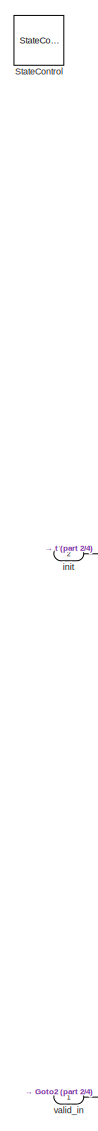
[diagram: full_ofdm_modulator/sync_constellation_scrambler/Synchronous constellation scrambler - part 1/4, left side, full height]
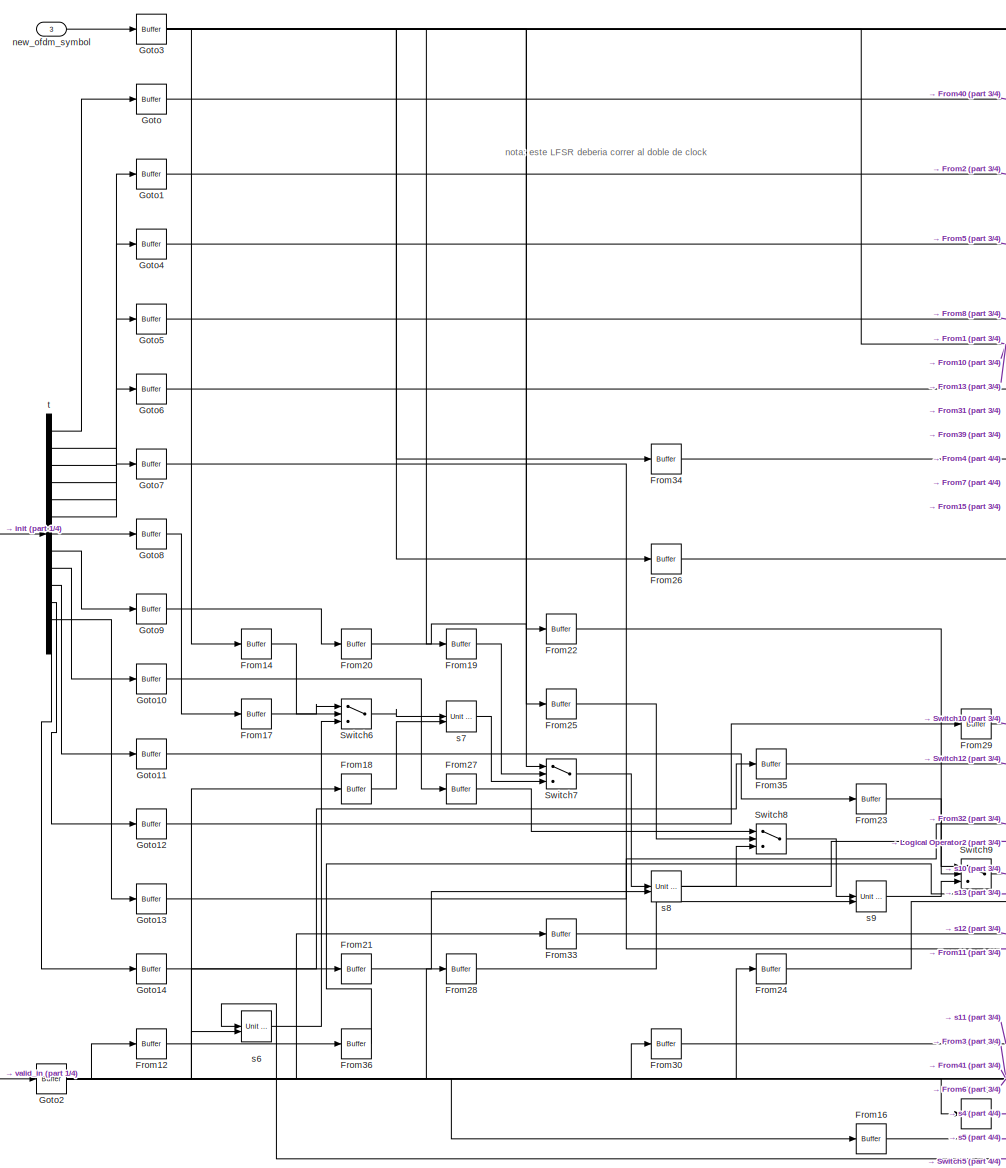
[diagram: full_ofdm_modulator/sync_constellation_scrambler/Synchronous constellation scrambler - part 2/4, left side, full height]
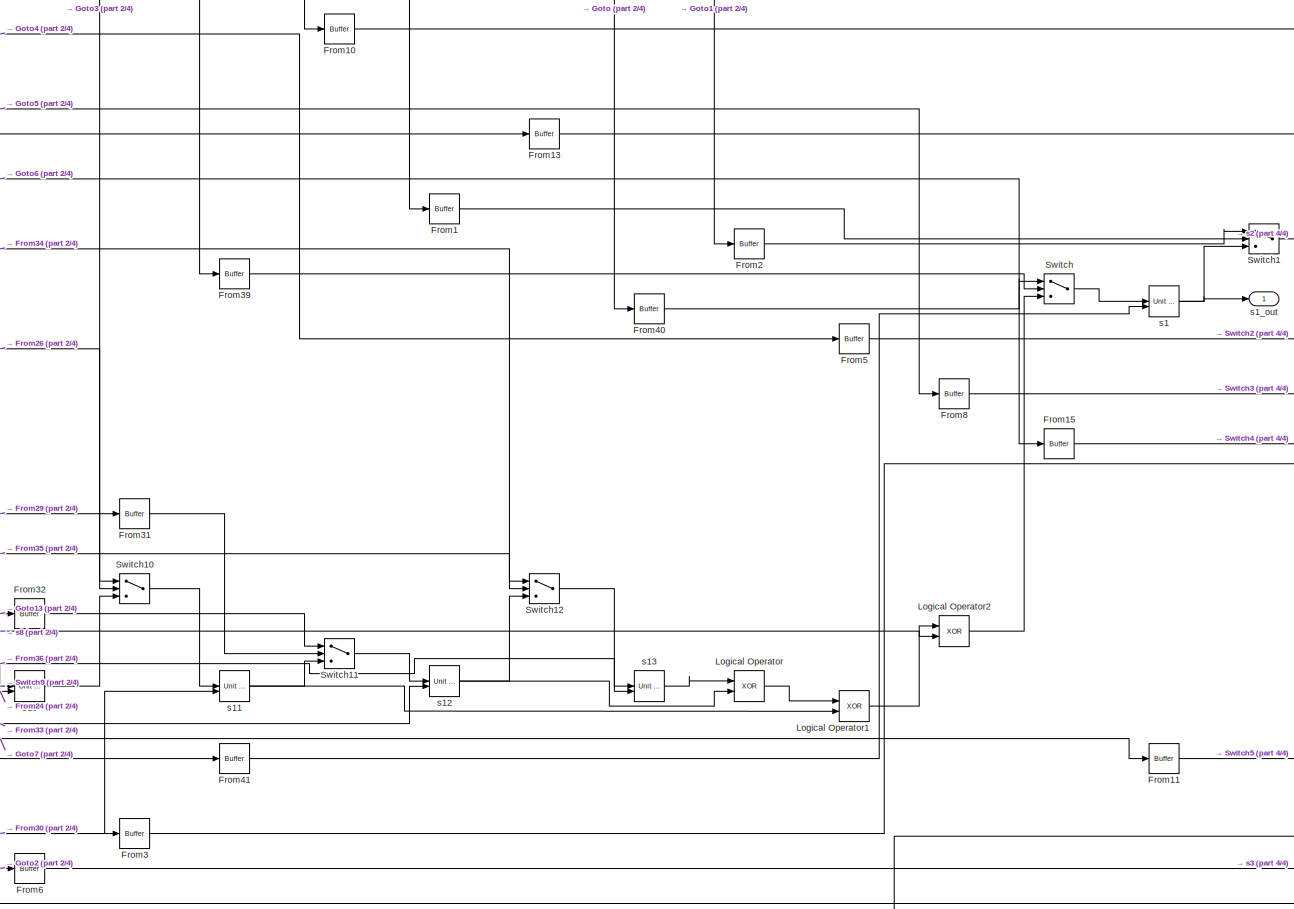
[diagram: full_ofdm_modulator/sync_constellation_scrambler/Synchronous constellation scrambler - part 3/4, center side, full height]
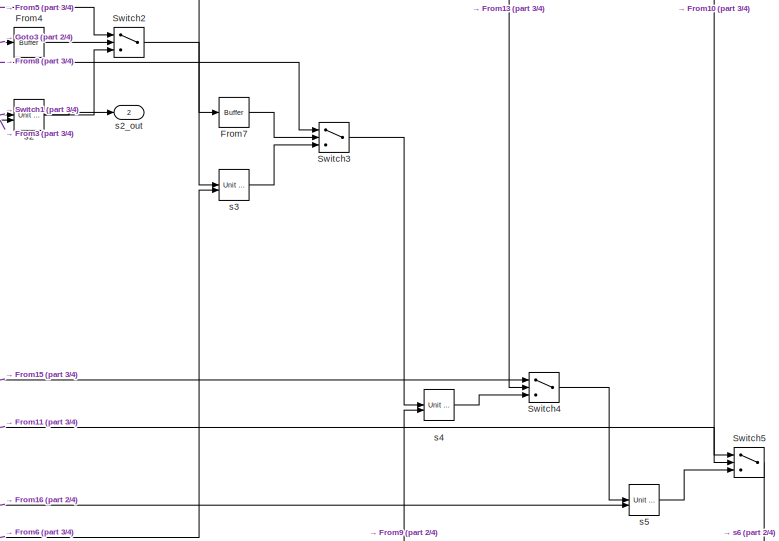
[diagram: full_ofdm_modulator/sync_constellation_scrambler/Synchronous constellation scrambler - part 4/4, bottom right region]
BLOCK [SubSystem] full_ofdm_modulator/sync_constellation_scrambler/Synchronous constellation scrambler
BLOCK [Reference] full_ofdm_modulator/sync_constellation_scrambler/Synchronous constellation scrambler/From1  REF=hdlmdlgenlib/Buffer
  SourceBlock = hdlmdlgenlib/Buffer
  SourceType = Buffer/Wire
BLOCK [Reference] full_ofdm_modulator/sync_constellation_scrambler/Synchronous constellation scrambler/From10  REF=hdlmdlgenlib/Buffer
  SourceBlock = hdlmdlgenlib/Buffer
  SourceType = Buffer/Wire
BLOCK [Reference] full_ofdm_modulator/sync_constellation_scrambler/Synchronous constellation scrambler/From11  REF=hdlmdlgenlib/Buffer
  SourceBlock = hdlmdlgenlib/Buffer
  SourceType = Buffer/Wire
BLOCK [Reference] full_ofdm_modulator/sync_constellation_scrambler/Synchronous constellation scrambler/From12  REF=hdlmdlgenlib/Buffer
  SourceBlock = hdlmdlgenlib/Buffer
  SourceType = Buffer/Wire
BLOCK [Reference] full_ofdm_modulator/sync_constellation_scrambler/Synchronous constellation scrambler/From13  REF=hdlmdlgenlib/Buffer
  SourceBlock = hdlmdlgenlib/Buffer
  SourceType = Buffer/Wire
BLOCK [Reference] full_ofdm_modulator/sync_constellation_scrambler/Synchronous constellation scrambler/From14  REF=hdlmdlgenlib/Buffer
  SourceBlock = hdlmdlgenlib/Buffer
  SourceType = Buffer/Wire
BLOCK [Reference] full_ofdm_modulator/sync_constellation_scrambler/Synchronous constellation scrambler/From15  REF=hdlmdlgenlib/Buffer
  SourceBlock = hdlmdlgenlib/Buffer
  SourceType = Buffer/Wire
BLOCK [Reference] full_ofdm_modulator/sync_constellation_scrambler/Synchronous constellation scrambler/From16  REF=hdlmdlgenlib/Buffer
  SourceBlock = hdlmdlgenlib/Buffer
  SourceType = Buffer/Wire
BLOCK [Reference] full_ofdm_modulator/sync_constellation_scrambler/Synchronous constellation scrambler/From17  REF=hdlmdlgenlib/Buffer
  SourceBlock = hdlmdlgenlib/Buffer
  SourceType = Buffer/Wire
BLOCK [Reference] full_ofdm_modulator/sync_constellation_scrambler/Synchronous constellation scrambler/From18  REF=hdlmdlgenlib/Buffer
  SourceBlock = hdlmdlgenlib/Buffer
  SourceType = Buffer/Wire
BLOCK [Reference] full_ofdm_modulator/sync_constellation_scrambler/Synchronous constellation scrambler/From19  REF=hdlmdlgenlib/Buffer
  SourceBlock = hdlmdlgenlib/Buffer
  SourceType = Buffer/Wire
BLOCK [Reference] full_ofdm_modulator/sync_constellation_scrambler/Synchronous constellation scrambler/From2  REF=hdlmdlgenlib/Buffer
  SourceBlock = hdlmdlgenlib/Buffer
  SourceType = Buffer/Wire
BLOCK [Reference] full_ofdm_modulator/sync_constellation_scrambler/Synchronous constellation scrambler/From20  REF=hdlmdlgenlib/Buffer
  SourceBlock = hdlmdlgenlib/Buffer
  SourceType = Buffer/Wire
BLOCK [Reference] full_ofdm_modulator/sync_constellation_scrambler/Synchronous constellation scrambler/From21  REF=hdlmdlgenlib/Buffer
  SourceBlock = hdlmdlgenlib/Buffer
  SourceType = Buffer/Wire
BLOCK [Reference] full_ofdm_modulator/sync_constellation_scrambler/Synchronous constellation scrambler/From22  REF=hdlmdlgenlib/Buffer
  SourceBlock = hdlmdlgenlib/Buffer
  SourceType = Buffer/Wire
BLOCK [Reference] full_ofdm_modulator/sync_constellation_scrambler/Synchronous constellation scrambler/From23  REF=hdlmdlgenlib/Buffer
  SourceBlock = hdlmdlgenlib/Buffer
  SourceType = Buffer/Wire
BLOCK [Reference] full_ofdm_modulator/sync_constellation_scrambler/Synchronous constellation scrambler/From24  REF=hdlmdlgenlib/Buffer
  SourceBlock = hdlmdlgenlib/Buffer
  SourceType = Buffer/Wire
BLOCK [Reference] full_ofdm_modulator/sync_constellation_scrambler/Synchronous constellation scrambler/From25  REF=hdlmdlgenlib/Buffer
  SourceBlock = hdlmdlgenlib/Buffer
  SourceType = Buffer/Wire
BLOCK [Reference] full_ofdm_modulator/sync_constellation_scrambler/Synchronous constellation scrambler/From26  REF=hdlmdlgenlib/Buffer
  SourceBlock = hdlmdlgenlib/Buffer
  SourceType = Buffer/Wire
BLOCK [Reference] full_ofdm_modulator/sync_constellation_scrambler/Synchronous constellation scrambler/From27  REF=hdlmdlgenlib/Buffer
  SourceBlock = hdlmdlgenlib/Buffer
  SourceType = Buffer/Wire
BLOCK [Reference] full_ofdm_modulator/sync_constellation_scrambler/Synchronous constellation scrambler/From28  REF=hdlmdlgenlib/Buffer
  SourceBlock = hdlmdlgenlib/Buffer
  SourceType = Buffer/Wire
BLOCK [Reference] full_ofdm_modulator/sync_constellation_scrambler/Synchronous constellation scrambler/From29  REF=hdlmdlgenlib/Buffer
  SourceBlock = hdlmdlgenlib/Buffer
  SourceType = Buffer/Wire
BLOCK [Reference] full_ofdm_modulator/sync_constellation_scrambler/Synchronous constellation scrambler/From3  REF=hdlmdlgenlib/Buffer
  SourceBlock = hdlmdlgenlib/Buffer
  SourceType = Buffer/Wire
BLOCK [Reference] full_ofdm_modulator/sync_constellation_scrambler/Synchronous constellation scrambler/From30  REF=hdlmdlgenlib/Buffer
  SourceBlock = hdlmdlgenlib/Buffer
  SourceType = Buffer/Wire
BLOCK [Reference] full_ofdm_modulator/sync_constellation_scrambler/Synchronous constellation scrambler/From31  REF=hdlmdlgenlib/Buffer
  SourceBlock = hdlmdlgenlib/Buffer
  SourceType = Buffer/Wire
BLOCK [Reference] full_ofdm_modulator/sync_constellation_scrambler/Synchronous constellation scrambler/From32  REF=hdlmdlgenlib/Buffer
  SourceBlock = hdlmdlgenlib/Buffer
  SourceType = Buffer/Wire
BLOCK [Reference] full_ofdm_modulator/sync_constellation_scrambler/Synchronous constellation scrambler/From33  REF=hdlmdlgenlib/Buffer
  SourceBlock = hdlmdlgenlib/Buffer
  SourceType = Buffer/Wire
BLOCK [Reference] full_ofdm_modulator/sync_constellation_scrambler/Synchronous constellation scrambler/From34  REF=hdlmdlgenlib/Buffer
  SourceBlock = hdlmdlgenlib/Buffer
  SourceType = Buffer/Wire
BLOCK [Reference] full_ofdm_modulator/sync_constellation_scrambler/Synchronous constellation scrambler/From35  REF=hdlmdlgenlib/Buffer
  SourceBlock = hdlmdlgenlib/Buffer
  SourceType = Buffer/Wire
BLOCK [Reference] full_ofdm_modulator/sync_constellation_scrambler/Synchronous constellation scrambler/From36  REF=hdlmdlgenlib/Buffer
  SourceBlock = hdlmdlgenlib/Buffer
  SourceType = Buffer/Wire
BLOCK [Reference] full_ofdm_modulator/sync_constellation_scrambler/Synchronous constellation scrambler/From39  REF=hdlmdlgenlib/Buffer
  SourceBlock = hdlmdlgenlib/Buffer
  SourceType = Buffer/Wire
BLOCK [Reference] full_ofdm_modulator/sync_constellation_scrambler/Synchronous constellation scrambler/From4  REF=hdlmdlgenlib/Buffer
  SourceBlock = hdlmdlgenlib/Buffer
  SourceType = Buffer/Wire
BLOCK [Reference] full_ofdm_modulator/sync_constellation_scrambler/Synchronous constellation scrambler/From40  REF=hdlmdlgenlib/Buffer
  SourceBlock = hdlmdlgenlib/Buffer
  SourceType = Buffer/Wire
BLOCK [Reference] full_ofdm_modulator/sync_constellation_scrambler/Synchronous constellation scrambler/From41  REF=hdlmdlgenlib/Buffer
  SourceBlock = hdlmdlgenlib/Buffer
  SourceType = Buffer/Wire
BLOCK [Reference] full_ofdm_modulator/sync_constellation_scrambler/Synchronous constellation scrambler/From5  REF=hdlmdlgenlib/Buffer
  SourceBlock = hdlmdlgenlib/Buffer
  SourceType = Buffer/Wire
BLOCK [Reference] full_ofdm_modulator/sync_constellation_scrambler/Synchronous constellation scrambler/From6  REF=hdlmdlgenlib/Buffer
  SourceBlock = hdlmdlgenlib/Buffer
  SourceType = Buffer/Wire
BLOCK [Reference] full_ofdm_modulator/sync_constellation_scrambler/Synchronous constellation scrambler/From7  REF=hdlmdlgenlib/Buffer
  SourceBlock = hdlmdlgenlib/Buffer
  SourceType = Buffer/Wire
BLOCK [Reference] full_ofdm_modulator/sync_constellation_scrambler/Synchronous constellation scrambler/From8  REF=hdlmdlgenlib/Buffer
  SourceBlock = hdlmdlgenlib/Buffer
  SourceType = Buffer/Wire
BLOCK [Reference] full_ofdm_modulator/sync_constellation_scrambler/Synchronous constellation scrambler/From9  REF=hdlmdlgenlib/Buffer
  SourceBlock = hdlmdlgenlib/Buffer
  SourceType = Buffer/Wire
BLOCK [Reference] full_ofdm_modulator/sync_constellation_scrambler/Synchronous constellation scrambler/Goto  REF=hdlmdlgenlib/Buffer
  SourceBlock = hdlmdlgenlib/Buffer
  SourceType = Buffer/Wire
BLOCK [Reference] full_ofdm_modulator/sync_constellation_scrambler/Synchronous constellation scrambler/Goto1  REF=hdlmdlgenlib/Buffer
  SourceBlock = hdlmdlgenlib/Buffer
  SourceType = Buffer/Wire
BLOCK [Reference] full_ofdm_modulator/sync_constellation_scrambler/Synchronous constellation scrambler/Goto10  REF=hdlmdlgenlib/Buffer
  SourceBlock = hdlmdlgenlib/Buffer
  SourceType = Buffer/Wire
BLOCK [Reference] full_ofdm_modulator/sync_constellation_scrambler/Synchronous constellation scrambler/Goto11  REF=hdlmdlgenlib/Buffer
  SourceBlock = hdlmdlgenlib/Buffer
  SourceType = Buffer/Wire
BLOCK [Reference] full_ofdm_modulator/sync_constellation_scrambler/Synchronous constellation scrambler/Goto12  REF=hdlmdlgenlib/Buffer
  SourceBlock = hdlmdlgenlib/Buffer
  SourceType = Buffer/Wire
BLOCK [Reference] full_ofdm_modulator/sync_constellation_scrambler/Synchronous constellation scrambler/Goto13  REF=hdlmdlgenlib/Buffer
  SourceBlock = hdlmdlgenlib/Buffer
  SourceType = Buffer/Wire
BLOCK [Reference] full_ofdm_modulator/sync_constellation_scrambler/Synchronous constellation scrambler/Goto14  REF=hdlmdlgenlib/Buffer
  SourceBlock = hdlmdlgenlib/Buffer
  SourceType = Buffer/Wire
BLOCK [Reference] full_ofdm_modulator/sync_constellation_scrambler/Synchronous constellation scrambler/Goto2  REF=hdlmdlgenlib/Buffer
  SourceBlock = hdlmdlgenlib/Buffer
  SourceType = Buffer/Wire
BLOCK [Reference] full_ofdm_modulator/sync_constellation_scrambler/Synchronous constellation scrambler/Goto3  REF=hdlmdlgenlib/Buffer
  SourceBlock = hdlmdlgenlib/Buffer
  SourceType = Buffer/Wire
BLOCK [Reference] full_ofdm_modulator/sync_constellation_scrambler/Synchronous constellation scrambler/Goto4  REF=hdlmdlgenlib/Buffer
  SourceBlock = hdlmdlgenlib/Buffer
  SourceType = Buffer/Wire
BLOCK [Reference] full_ofdm_modulator/sync_constellation_scrambler/Synchronous constellation scrambler/Goto5  REF=hdlmdlgenlib/Buffer
  SourceBlock = hdlmdlgenlib/Buffer
  SourceType = Buffer/Wire
BLOCK [Reference] full_ofdm_modulator/sync_constellation_scrambler/Synchronous constellation scrambler/Goto6  REF=hdlmdlgenlib/Buffer
  SourceBlock = hdlmdlgenlib/Buffer
  SourceType = Buffer/Wire
BLOCK [Reference] full_ofdm_modulator/sync_constellation_scrambler/Synchronous constellation scrambler/Goto7  REF=hdlmdlgenlib/Buffer
  SourceBlock = hdlmdlgenlib/Buffer
  SourceType = Buffer/Wire
BLOCK [Reference] full_ofdm_modulator/sync_constellation_scrambler/Synchronous constellation scrambler/Goto8  REF=hdlmdlgenlib/Buffer
  SourceBlock = hdlmdlgenlib/Buffer
  SourceType = Buffer/Wire
BLOCK [Reference] full_ofdm_modulator/sync_constellation_scrambler/Synchronous constellation scrambler/Goto9  REF=hdlmdlgenlib/Buffer
  SourceBlock = hdlmdlgenlib/Buffer
  SourceType = Buffer/Wire
BLOCK [Logic] full_ofdm_modulator/sync_constellation_scrambler/Synchronous constellation scrambler/Logical Operator
  AllPortsSameDT = off
  Operator = XOR
  OutDataTypeStr = boolean
  SampleTime = 1e-08
BLOCK [Logic] full_ofdm_modulator/sync_constellation_scrambler/Synchronous constellation scrambler/Logical Operator1
  AllPortsSameDT = off
  Operator = XOR
  OutDataTypeStr = boolean
  SampleTime = 1e-08
BLOCK [Logic] full_ofdm_modulator/sync_constellation_scrambler/Synchronous constellation scrambler/Logical Operator2
  AllPortsSameDT = off
  Operator = XOR
  OutDataTypeStr = boolean
  SampleTime = 1e-08
BLOCK [StateControl] full_ofdm_modulator/sync_constellation_scrambler/Synchronous constellation scrambler/StateControl
  StateControl = Synchronous
BLOCK [Switch] full_ofdm_modulator/sync_constellation_scrambler/Synchronous constellation scrambler/Switch
  Criteria = u2 ~= 0
  InputSameDT = off
  OutDataTypeStr = boolean
  SampleTime = 1e-08
  SaturateOnIntegerOverflow = off
  Threshold = double(0)
BLOCK [Switch] full_ofdm_modulator/sync_constellation_scrambler/Synchronous constellation scrambler/Switch1
  Criteria = u2 ~= 0
  InputSameDT = off
  OutDataTypeStr = boolean
  SampleTime = 1e-08
  SaturateOnIntegerOverflow = off
  Threshold = double(0)
BLOCK [Switch] full_ofdm_modulator/sync_constellation_scrambler/Synchronous constellation scrambler/Switch10
  Criteria = u2 ~= 0
  InputSameDT = off
  OutDataTypeStr = boolean
  SampleTime = 1e-08
  SaturateOnIntegerOverflow = off
  Threshold = double(0)
BLOCK [Switch] full_ofdm_modulator/sync_constellation_scrambler/Synchronous constellation scrambler/Switch11
  Criteria = u2 ~= 0
  InputSameDT = off
  OutDataTypeStr = boolean
  SampleTime = 1e-08
  SaturateOnIntegerOverflow = off
  Threshold = double(0)
BLOCK [Switch] full_ofdm_modulator/sync_constellation_scrambler/Synchronous constellation scrambler/Switch12
  Criteria = u2 ~= 0
  InputSameDT = off
  OutDataTypeStr = boolean
  SampleTime = 1e-08
  SaturateOnIntegerOverflow = off
  Threshold = double(0)
BLOCK [Switch] full_ofdm_modulator/sync_constellation_scrambler/Synchronous constellation scrambler/Switch2
  Criteria = u2 ~= 0
  InputSameDT = off
  OutDataTypeStr = boolean
  SampleTime = 1e-08
  SaturateOnIntegerOverflow = off
  Threshold = double(0)
BLOCK [Switch] full_ofdm_modulator/sync_constellation_scrambler/Synchronous constellation scrambler/Switch3
  Criteria = u2 ~= 0
  InputSameDT = off
  OutDataTypeStr = boolean
  SampleTime = 1e-08
  SaturateOnIntegerOverflow = off
  Threshold = double(0)
BLOCK [Switch] full_ofdm_modulator/sync_constellation_scrambler/Synchronous constellation scrambler/Switch4
  Criteria = u2 ~= 0
  InputSameDT = off
  OutDataTypeStr = boolean
  SampleTime = 1e-08
  SaturateOnIntegerOverflow = off
  Threshold = double(0)
BLOCK [Switch] full_ofdm_modulator/sync_constellation_scrambler/Synchronous constellation scrambler/Switch5
  Criteria = u2 ~= 0
  InputSameDT = off
  OutDataTypeStr = boolean
  SampleTime = 1e-08
  SaturateOnIntegerOverflow = off
  Threshold = double(0)
BLOCK [Switch] full_ofdm_modulator/sync_constellation_scrambler/Synchronous constellation scrambler/Switch6
  Criteria = u2 ~= 0
  InputSameDT = off
  OutDataTypeStr = boolean
  SampleTime = 1e-08
  SaturateOnIntegerOverflow = off
  Threshold = double(0)
BLOCK [Switch] full_ofdm_modulator/sync_constellation_scrambler/Synchronous constellation scrambler/Switch7
  Criteria = u2 ~= 0
  InputSameDT = off
  OutDataTypeStr = boolean
  SampleTime = 1e-08
  SaturateOnIntegerOverflow = off
  Threshold = double(0)
BLOCK [Switch] full_ofdm_modulator/sync_constellation_scrambler/Synchronous constellation scrambler/Switch8
  Criteria = u2 ~= 0
  InputSameDT = off
  OutDataTypeStr = boolean
  SampleTime = 1e-08
  SaturateOnIntegerOverflow = off
  Threshold = double(0)
BLOCK [Switch] full_ofdm_modulator/sync_constellation_scrambler/Synchronous constellation scrambler/Switch9
  Criteria = u2 ~= 0
  InputSameDT = off
  OutDataTypeStr = boolean
  SampleTime = 1e-08
  SaturateOnIntegerOverflow = off
  Threshold = double(0)
BLOCK [Inport] full_ofdm_modulator/sync_constellation_scrambler/Synchronous constellation scrambler/init
  OutDataTypeStr = boolean
  Port = 2
  PortDimensions = [1 13]
  SampleTime = 1e-08
BLOCK [Inport] full_ofdm_modulator/sync_constellation_scrambler/Synchronous constellation scrambler/new_ofdm_symbol
  OutDataTypeStr = boolean
  Port = 3
  PortDimensions = 1
  SampleTime = 1e-08
BLOCK [Reference] full_ofdm_modulator/sync_constellation_scrambler/Synchronous constellation scrambler/s1  REF=hdlsllib/Discrete/Unit Delay Enabled
Synchronous
  SourceBlock = hdlsllib/Discrete/Unit Delay Enabled\nSynchronous
  SourceType = Unit Delay Enabled Synchronous
BLOCK [Reference] full_ofdm_modulator/sync_constellation_scrambler/Synchronous constellation scrambler/s10  REF=hdlsllib/Discrete/Unit Delay Enabled
Synchronous
  SourceBlock = hdlsllib/Discrete/Unit Delay Enabled\nSynchronous
  SourceType = Unit Delay Enabled Synchronous
BLOCK [Reference] full_ofdm_modulator/sync_constellation_scrambler/Synchronous constellation scrambler/s11  REF=hdlsllib/Discrete/Unit Delay Enabled
Synchronous
  SourceBlock = hdlsllib/Discrete/Unit Delay Enabled\nSynchronous
  SourceType = Unit Delay Enabled Synchronous
BLOCK [Reference] full_ofdm_modulator/sync_constellation_scrambler/Synchronous constellation scrambler/s12  REF=hdlsllib/Discrete/Unit Delay Enabled
Synchronous
  SourceBlock = hdlsllib/Discrete/Unit Delay Enabled\nSynchronous
  SourceType = Unit Delay Enabled Synchronous
BLOCK [Reference] full_ofdm_modulator/sync_constellation_scrambler/Synchronous constellation scrambler/s13  REF=hdlsllib/Discrete/Unit Delay Enabled
Synchronous
  SourceBlock = hdlsllib/Discrete/Unit Delay Enabled\nSynchronous
  SourceType = Unit Delay Enabled Synchronous
BLOCK [Outport] full_ofdm_modulator/sync_constellation_scrambler/Synchronous constellation scrambler/s1_out
  SampleTime = 1e-08
  VectorParamsAs1DForOutWhenUnconnected = off
BLOCK [Reference] full_ofdm_modulator/sync_constellation_scrambler/Synchronous constellation scrambler/s2  REF=hdlsllib/Discrete/Unit Delay Enabled
Synchronous
  SourceBlock = hdlsllib/Discrete/Unit Delay Enabled\nSynchronous
  SourceType = Unit Delay Enabled Synchronous
BLOCK [Outport] full_ofdm_modulator/sync_constellation_scrambler/Synchronous constellation scrambler/s2_out
  Port = 2
  SampleTime = 1e-08
  VectorParamsAs1DForOutWhenUnconnected = off
BLOCK [Reference] full_ofdm_modulator/sync_constellation_scrambler/Synchronous constellation scrambler/s3  REF=hdlsllib/Discrete/Unit Delay Enabled
Synchronous
  SourceBlock = hdlsllib/Discrete/Unit Delay Enabled\nSynchronous
  SourceType = Unit Delay Enabled Synchronous
BLOCK [Reference] full_ofdm_modulator/sync_constellation_scrambler/Synchronous constellation scrambler/s4  REF=hdlsllib/Discrete/Unit Delay Enabled
Synchronous
  SourceBlock = hdlsllib/Discrete/Unit Delay Enabled\nSynchronous
  SourceType = Unit Delay Enabled Synchronous
BLOCK [Reference] full_ofdm_modulator/sync_constellation_scrambler/Synchronous constellation scrambler/s5  REF=hdlsllib/Discrete/Unit Delay Enabled
Synchronous
  SourceBlock = hdlsllib/Discrete/Unit Delay Enabled\nSynchronous
  SourceType = Unit Delay Enabled Synchronous
BLOCK [Reference] full_ofdm_modulator/sync_constellation_scrambler/Synchronous constellation scrambler/s6  REF=hdlsllib/Discrete/Unit Delay Enabled
Synchronous
  SourceBlock = hdlsllib/Discrete/Unit Delay Enabled\nSynchronous
  SourceType = Unit Delay Enabled Synchronous
BLOCK [Reference] full_ofdm_modulator/sync_constellation_scrambler/Synchronous constellation scrambler/s7  REF=hdlsllib/Discrete/Unit Delay Enabled
Synchronous
  SourceBlock = hdlsllib/Discrete/Unit Delay Enabled\nSynchronous
  SourceType = Unit Delay Enabled Synchronous
BLOCK [Reference] full_ofdm_modulator/sync_constellation_scrambler/Synchronous constellation scrambler/s8  REF=hdlsllib/Discrete/Unit Delay Enabled
Synchronous
  SourceBlock = hdlsllib/Discrete/Unit Delay Enabled\nSynchronous
  SourceType = Unit Delay Enabled Synchronous
BLOCK [Reference] full_ofdm_modulator/sync_constellation_scrambler/Synchronous constellation scrambler/s9  REF=hdlsllib/Discrete/Unit Delay Enabled
Synchronous
  SourceBlock = hdlsllib/Discrete/Unit Delay Enabled\nSynchronous
  SourceType = Unit Delay Enabled Synchronous
BLOCK [Demux] full_ofdm_modulator/sync_constellation_scrambler/Synchronous constellation scrambler/t
  Outputs = 13
BLOCK [Inport] full_ofdm_modulator/sync_constellation_scrambler/Synchronous constellation scrambler/valid_in
  OutDataTypeStr = boolean
  PortDimensions = 1
  SampleTime = 1e-08
BLOCK [Inport] full_ofdm_modulator/sync_constellation_scrambler/init
  OutDataTypeStr = boolean
  Port = 2
  PortDimensions = [1 13]
  SampleTime = 2e-08
BLOCK [Inport] full_ofdm_modulator/sync_constellation_scrambler/new_ofdm_symbol
  OutDataTypeStr = boolean
  SampleTime = 2e-08
BLOCK [Outport] full_ofdm_modulator/sync_constellation_scrambler/s1
  SampleTime = 2e-08
BLOCK [Outport] full_ofdm_modulator/sync_constellation_scrambler/s2
  Port = 2
  SampleTime = 2e-08
BLOCK [Inport] full_ofdm_modulator/sync_constellation_scrambler/valid_in
  OutDataTypeStr = boolean
  Port = 3
  SampleTime = 2e-08
BLOCK [Inport] full_ofdm_modulator/valid_in
  OutDataTypeStr = boolean
  Port = 2
  SampleTime = 2e-08
BLOCK [Outport] full_ofdm_modulator/valid_out
  Port = 2
  SampleTime = 1e-08
BLOCK [Reference] full_ofdm_modulator_vs  REF=vivadosimlib/HDL Cosimulation
  SourceBlock = vivadosimlib/HDL Cosimulation
  SourceType = Simulink and Vivado Simulator Cosimulation
  UserDataPersistent = on
BLOCK [Reference] valid_to_ctrl  REF=HDL_ieee_8021513/valid_to_ctrl
  SourceBlock = HDL_ieee_8021513/valid_to_ctrl
  SourceProductName = HDL IEEE 8021513
  SourceType = SubSystem
ANNOTATION Data and Valid Selector: This subsystem is active only when the input ready signal is active. The subsystem selects the Input Valid value and outputs the valid signal. The subsystem also selects the payload data from an LUT based on the Input Valid signal and outputs it as data signal.
ANNOTATION full_ofdm_modulator/sync_constellation_scrambler/Synchronous constellation scrambler: nota: este LFSR deberia correr al doble de clock
LINE Compare/Assert_data_out/Compare To Zero:1 -> Compare/Assert_data_out/compare: data_out:3
NET Compare/Assert_data_out/Relational Operator:1 -> Compare/Assert_data_out/AssertEq:1, Compare/Assert_data_out/Compare To Zero:1
NET Compare/Assert_data_out/cosim:1 -> Compare/Assert_data_out/Relational Operator:1, Compare/Assert_data_out/compare: data_out:1
NET Compare/Assert_data_out/dut:1 -> Compare/Assert_data_out/Relational Operator:2, Compare/Assert_data_out/compare: data_out:2
LINE Compare/Assert_ready/Compare To Zero:1 -> Compare/Assert_ready/compare: ready:3
NET Compare/Assert_ready/Relational Operator:1 -> Compare/Assert_ready/AssertEq:1, Compare/Assert_ready/Compare To Zero:1
NET Compare/Assert_ready/cosim:1 -> Compare/Assert_ready/Relational Operator:1, Compare/Assert_ready/compare: ready:1
NET Compare/Assert_ready/dut:1 -> Compare/Assert_ready/Relational Operator:2, Compare/Assert_ready/compare: ready:2
LINE Compare/Assert_valid_out/Compare To Zero:1 -> Compare/Assert_valid_out/compare: valid_out:3
NET Compare/Assert_valid_out/Relational Operator:1 -> Compare/Assert_valid_out/AssertEq:1, Compare/Assert_valid_out/Compare To Zero:1
NET Compare/Assert_valid_out/cosim:1 -> Compare/Assert_valid_out/Relational Operator:1, Compare/Assert_valid_out/compare: valid_out:1
NET Compare/Assert_valid_out/dut:1 -> Compare/Assert_valid_out/Relational Operator:2, Compare/Assert_valid_out/compare: valid_out:2
LINE Compare/from1:1 -> Compare/Assert_data_out:2
LINE Compare/from2:1 -> Compare/Assert_valid_out:2
LINE Compare/from3:1 -> Compare/Assert_ready:2
LINE Compare/in1:1 -> Compare/Assert_data_out:1
LINE Compare/in2:1 -> Compare/Assert_valid_out:1
LINE Compare/in3:1 -> Compare/Assert_ready:1
LINE Data Type Conversion1:1 -> ToCosimSrc:3
LINE Data Type Conversion2:1 -> ToCosimSrc:2
LINE Data Type Conversion3:1 -> ToCosimSrc:5
LINE Data Type Conversion4:1 -> ToCosimSrc:6
LINE Data Type Conversion5:1 -> ToCosimSrc:4
LINE Data Type Conversion:1 -> ToCosimSrc:1
LINE Data and Valid Selector/Compare To Zero:1 -> Data and Valid Selector/Logical Operator:2
LINE Data and Valid Selector/Delay1:1 -> Data and Valid Selector/last:1
LINE Data and Valid Selector/Delay2:1 -> Data and Valid Selector/valid:1
LINE Data and Valid Selector/Delay3:1 -> Data and Valid Selector/new:1
LINE Data and Valid Selector/Delay4:1 -> Data and Valid Selector/end:1
LINE Data and Valid Selector/Delay5:1 -> Data and Valid Selector/bits_per_subcarrier:1
LINE Data and Valid Selector/Delay6:1 -> Data and Valid Selector/init:1
LINE Data and Valid Selector/Delay7:1 -> Data and Valid Selector/cp_len:1
LINE Data and Valid Selector/Delay:1 -> Data and Valid Selector/data:1
LINE Data and Valid Selector/Direct Lookup Table (n-D):1 -> Data and Valid Selector/Delay:1
LINE Data and Valid Selector/HDL Counter1:1 -> Data and Valid Selector/Compare To Zero:1
LINE Data and Valid Selector/HDL Counter1:2 -> Data and Valid Selector/Delay4:1
LINE Data and Valid Selector/HDL Counter:1 -> Data and Valid Selector/Direct Lookup Table (n-D):1
LINE Data and Valid Selector/HDL Counter:2 -> Data and Valid Selector/Delay1:1
LINE Data and Valid Selector/Input Valid1:1 -> Data and Valid Selector/Delay5:1
LINE Data and Valid Selector/Input Valid2:1 -> Data and Valid Selector/Delay6:1
LINE Data and Valid Selector/Input Valid3:1 -> Data and Valid Selector/Delay7:1
NET Data and Valid Selector/Input Valid:1 -> Data and Valid Selector/Delay2:1, Data and Valid Selector/HDL Counter1:1, Data and Valid Selector/HDL Counter:1, Data and Valid Selector/Logical Operator:1
LINE Data and Valid Selector/Logical Operator:1 -> Data and Valid Selector/Delay3:1
LINE Data and Valid Selector:1 -> Data Type Conversion:1
LINE Data and Valid Selector:2 -> Data Type Conversion2:1
LINE Data and Valid Selector:3 -> Data Type Conversion1:1
LINE Data and Valid Selector:4 -> Data Type Conversion5:1
LINE Data and Valid Selector:5 -> Data Type Conversion3:1
LINE Data and Valid Selector:6 -> Data Type Conversion4:1
LINE Data and Valid Selector:7 -> Terminator:1
LINE Data and Valid Selector:8 -> Terminator1:1
LINE Delay:1 -> To Workspace4:1
LINE FromCosimSrc/from1:1 -> FromCosimSrc/out1:1
LINE FromCosimSrc/from2:1 -> FromCosimSrc/out2:1
LINE FromCosimSrc/from3:1 -> FromCosimSrc/out3:1
LINE FromCosimSrc/from4:1 -> FromCosimSrc/out4:1
LINE FromCosimSrc/from5:1 -> FromCosimSrc/out5:1
LINE FromCosimSrc/from6:1 -> FromCosimSrc/out6:1
LINE FromCosimSrc:1 -> full_ofdm_modulator_vs:1
LINE FromCosimSrc:2 -> full_ofdm_modulator_vs:2
LINE FromCosimSrc:3 -> full_ofdm_modulator_vs:3
LINE FromCosimSrc:4 -> full_ofdm_modulator_vs:4
LINE FromCosimSrc:5 -> full_ofdm_modulator_vs:5
LINE FromCosimSrc:6 -> full_ofdm_modulator_vs:6
LINE Sample Control Bus Selector1:1 -> To Workspace5:1
LINE Sample Control Bus Selector1:2 -> To Workspace6:1
LINE Sample Control Bus Selector1:3 -> To Workspace7:1
NET ToCosimSink/in1:1 -> ToCosimSink/goto1:1, ToCosimSink/out1:1
NET ToCosimSink/in2:1 -> ToCosimSink/goto2:1, ToCosimSink/out2:1
NET ToCosimSink/in3:1 -> ToCosimSink/goto3:1, ToCosimSink/out3:1
LINE ToCosimSink:1 -> Delay:1
LINE ToCosimSink:2 -> valid_to_ctrl:1
LINE ToCosimSink:3 -> Data and Valid Selector:enable
NET ToCosimSrc/in1:1 -> ToCosimSrc/goto1:1, ToCosimSrc/out1:1
NET ToCosimSrc/in2:1 -> ToCosimSrc/goto2:1, ToCosimSrc/out2:1
NET ToCosimSrc/in3:1 -> ToCosimSrc/goto3:1, ToCosimSrc/out3:1
NET ToCosimSrc/in4:1 -> ToCosimSrc/goto4:1, ToCosimSrc/out4:1
NET ToCosimSrc/in5:1 -> ToCosimSrc/goto5:1, ToCosimSrc/out5:1
NET ToCosimSrc/in6:1 -> ToCosimSrc/goto6:1, ToCosimSrc/out6:1
LINE ToCosimSrc:1 -> full_ofdm_modulator:1
LINE ToCosimSrc:2 -> full_ofdm_modulator:2
LINE ToCosimSrc:3 -> full_ofdm_modulator:3
LINE ToCosimSrc:4 -> full_ofdm_modulator:4
LINE ToCosimSrc:5 -> full_ofdm_modulator:5
LINE ToCosimSrc:6 -> full_ofdm_modulator:6
NET full_ofdm_modulator/Delay1:1 -> full_ofdm_modulator/Logical Operator3:1, full_ofdm_modulator/enabled_qam_and_scrambler:enable, full_ofdm_modulator/ready:1
LINE full_ofdm_modulator/Logical Operator3:1 -> full_ofdm_modulator/ofdm_modulator:2
LINE full_ofdm_modulator/Logical Operator:1 -> full_ofdm_modulator/sync_constellation_scrambler:3
LINE full_ofdm_modulator/bits_per_subcarrier:1 -> full_ofdm_modulator/enabled_qam_and_scrambler:3
LINE full_ofdm_modulator/cp_len:1 -> full_ofdm_modulator/enabled_qam_and_scrambler:6
LINE full_ofdm_modulator/data_in:1 -> full_ofdm_modulator/enabled_qam_and_scrambler:1
LINE full_ofdm_modulator/enabled_qam_and_scrambler/Delay1:1 -> full_ofdm_modulator/enabled_qam_and_scrambler/new_out:1
LINE full_ofdm_modulator/enabled_qam_and_scrambler/Delay2:1 -> full_ofdm_modulator/enabled_qam_and_scrambler/Delay3:1
LINE full_ofdm_modulator/enabled_qam_and_scrambler/Delay3:1 -> full_ofdm_modulator/enabled_qam_and_scrambler/cp_len_out:1
LINE full_ofdm_modulator/enabled_qam_and_scrambler/Delay:1 -> full_ofdm_modulator/enabled_qam_and_scrambler/init_out:1
LINE full_ofdm_modulator/enabled_qam_and_scrambler/bits_per_subcarrier:1 -> full_ofdm_modulator/enabled_qam_and_scrambler/qam_mod:3
LINE full_ofdm_modulator/enabled_qam_and_scrambler/constellation_scrambler/Delay1:1 -> full_ofdm_modulator/enabled_qam_and_scrambler/constellation_scrambler/Delay3:1
LINE full_ofdm_modulator/enabled_qam_and_scrambler/constellation_scrambler/Delay2:1 -> full_ofdm_modulator/enabled_qam_and_scrambler/constellation_scrambler/data_out:1
LINE full_ofdm_modulator/enabled_qam_and_scrambler/constellation_scrambler/Delay3:1 -> full_ofdm_modulator/enabled_qam_and_scrambler/constellation_scrambler/valid_out:1
LINE full_ofdm_modulator/enabled_qam_and_scrambler/constellation_scrambler/Delay:1 -> full_ofdm_modulator/enabled_qam_and_scrambler/constellation_scrambler/rotate:3
LINE full_ofdm_modulator/enabled_qam_and_scrambler/constellation_scrambler/data_in:1 -> full_ofdm_modulator/enabled_qam_and_scrambler/constellation_scrambler/Delay:1
LINE full_ofdm_modulator/enabled_qam_and_scrambler/constellation_scrambler/rotate/Bit Concat:1 -> full_ofdm_modulator/enabled_qam_and_scrambler/constellation_scrambler/rotate/Multiport Switch:1
LINE full_ofdm_modulator/enabled_qam_and_scrambler/constellation_scrambler/rotate/Complex to Real-Imag1:1 -> full_ofdm_modulator/enabled_qam_and_scrambler/constellation_scrambler/rotate/Real-Imag to Complex1:2
LINE full_ofdm_modulator/enabled_qam_and_scrambler/constellation_scrambler/rotate/Complex to Real-Imag1:2 -> full_ofdm_modulator/enabled_qam_and_scrambler/constellation_scrambler/rotate/Unary Minus1:1
LINE full_ofdm_modulator/enabled_qam_and_scrambler/constellation_scrambler/rotate/Complex to Real-Imag2:1 -> full_ofdm_modulator/enabled_qam_and_scrambler/constellation_scrambler/rotate/Unary Minus2:1
LINE full_ofdm_modulator/enabled_qam_and_scrambler/constellation_scrambler/rotate/Complex to Real-Imag2:2 -> full_ofdm_modulator/enabled_qam_and_scrambler/constellation_scrambler/rotate/Real-Imag to Complex2:1
LINE full_ofdm_modulator/enabled_qam_and_scrambler/constellation_scrambler/rotate/Complex to Real-Imag:1 -> full_ofdm_modulator/enabled_qam_and_scrambler/constellation_scrambler/rotate/Unary Minus:1
LINE full_ofdm_modulator/enabled_qam_and_scrambler/constellation_scrambler/rotate/Complex to Real-Imag:2 -> full_ofdm_modulator/enabled_qam_and_scrambler/constellation_scrambler/rotate/Unary Minus3:1
LINE full_ofdm_modulator/enabled_qam_and_scrambler/constellation_scrambler/rotate/Multiport Switch:1 -> full_ofdm_modulator/enabled_qam_and_scrambler/constellation_scrambler/rotate/data_out:1
LINE full_ofdm_modulator/enabled_qam_and_scrambler/constellation_scrambler/rotate/Real-Imag to Complex1:1 -> full_ofdm_modulator/enabled_qam_and_scrambler/constellation_scrambler/rotate/Multiport Switch:3
LINE full_ofdm_modulator/enabled_qam_and_scrambler/constellation_scrambler/rotate/Real-Imag to Complex2:1 -> full_ofdm_modulator/enabled_qam_and_scrambler/constellation_scrambler/rotate/Multiport Switch:5
LINE full_ofdm_modulator/enabled_qam_and_scrambler/constellation_scrambler/rotate/Real-Imag to Complex:1 -> full_ofdm_modulator/enabled_qam_and_scrambler/constellation_scrambler/rotate/Multiport Switch:4
LINE full_ofdm_modulator/enabled_qam_and_scrambler/constellation_scrambler/rotate/Unary Minus1:1 -> full_ofdm_modulator/enabled_qam_and_scrambler/constellation_scrambler/rotate/Real-Imag to Complex1:1
LINE full_ofdm_modulator/enabled_qam_and_scrambler/constellation_scrambler/rotate/Unary Minus2:1 -> full_ofdm_modulator/enabled_qam_and_scrambler/constellation_scrambler/rotate/Real-Imag to Complex2:2
LINE full_ofdm_modulator/enabled_qam_and_scrambler/constellation_scrambler/rotate/Unary Minus3:1 -> full_ofdm_modulator/enabled_qam_and_scrambler/constellation_scrambler/rotate/Real-Imag to Complex:2
LINE full_ofdm_modulator/enabled_qam_and_scrambler/constellation_scrambler/rotate/Unary Minus:1 -> full_ofdm_modulator/enabled_qam_and_scrambler/constellation_scrambler/rotate/Real-Imag to Complex:1
NET full_ofdm_modulator/enabled_qam_and_scrambler/constellation_scrambler/rotate/data_in:1 -> full_ofdm_modulator/enabled_qam_and_scrambler/constellation_scrambler/rotate/Complex to Real-Imag1:1, full_ofdm_modulator/enabled_qam_and_scrambler/constellation_scrambler/rotate/Complex to Real-Imag2:1, full_ofdm_modulator/enabled_qam_and_scrambler/constellation_scrambler/rotate/Complex to Real-Imag:1, full_ofdm_modulator/enabled_qam_and_scrambler/constellation_scrambler/rotate/Multiport Switch:2
LINE full_ofdm_modulator/enabled_qam_and_scrambler/constellation_scrambler/rotate/s1:1 -> full_ofdm_modulator/enabled_qam_and_scrambler/constellation_scrambler/rotate/Bit Concat:2
LINE full_ofdm_modulator/enabled_qam_and_scrambler/constellation_scrambler/rotate/s2:1 -> full_ofdm_modulator/enabled_qam_and_scrambler/constellation_scrambler/rotate/Bit Concat:1
LINE full_ofdm_modulator/enabled_qam_and_scrambler/constellation_scrambler/rotate:1 -> full_ofdm_modulator/enabled_qam_and_scrambler/constellation_scrambler/Delay2:1
LINE full_ofdm_modulator/enabled_qam_and_scrambler/constellation_scrambler/s1_in:1 -> full_ofdm_modulator/enabled_qam_and_scrambler/constellation_scrambler/rotate:2
LINE full_ofdm_modulator/enabled_qam_and_scrambler/constellation_scrambler/s2_in:1 -> full_ofdm_modulator/enabled_qam_and_scrambler/constellation_scrambler/rotate:1
LINE full_ofdm_modulator/enabled_qam_and_scrambler/constellation_scrambler/valid_in:1 -> full_ofdm_modulator/enabled_qam_and_scrambler/constellation_scrambler/Delay1:1
LINE full_ofdm_modulator/enabled_qam_and_scrambler/constellation_scrambler:1 -> full_ofdm_modulator/enabled_qam_and_scrambler/data_out:1
LINE full_ofdm_modulator/enabled_qam_and_scrambler/constellation_scrambler:2 -> full_ofdm_modulator/enabled_qam_and_scrambler/valid_out:1
LINE full_ofdm_modulator/enabled_qam_and_scrambler/cp_len:1 -> full_ofdm_modulator/enabled_qam_and_scrambler/Delay2:1
LINE full_ofdm_modulator/enabled_qam_and_scrambler/data_in:1 -> full_ofdm_modulator/enabled_qam_and_scrambler/qam_mod:1
LINE full_ofdm_modulator/enabled_qam_and_scrambler/init:1 -> full_ofdm_modulator/enabled_qam_and_scrambler/Delay:1
LINE full_ofdm_modulator/enabled_qam_and_scrambler/new:1 -> full_ofdm_modulator/enabled_qam_and_scrambler/Delay1:1
LINE full_ofdm_modulator/enabled_qam_and_scrambler/qam_mod/Bit Slice1:1 -> full_ofdm_modulator/enabled_qam_and_scrambler/qam_mod/batID 1:1
LINE full_ofdm_modulator/enabled_qam_and_scrambler/qam_mod/Bit Slice2:1 -> full_ofdm_modulator/enabled_qam_and_scrambler/qam_mod/batID 8:1
LINE full_ofdm_modulator/enabled_qam_and_scrambler/qam_mod/Bit Slice3:1 -> full_ofdm_modulator/enabled_qam_and_scrambler/qam_mod/batID 12:1
LINE full_ofdm_modulator/enabled_qam_and_scrambler/qam_mod/Bit Slice:1 -> full_ofdm_modulator/enabled_qam_and_scrambler/qam_mod/batID 0:1
LINE full_ofdm_modulator/enabled_qam_and_scrambler/qam_mod/Constant1:1 -> full_ofdm_modulator/enabled_qam_and_scrambler/qam_mod/Real-Imag to Complex4:1
LINE full_ofdm_modulator/enabled_qam_and_scrambler/qam_mod/Constant2:1 -> full_ofdm_modulator/enabled_qam_and_scrambler/qam_mod/Real-Imag to Complex2:1
LINE full_ofdm_modulator/enabled_qam_and_scrambler/qam_mod/Constant3:1 -> full_ofdm_modulator/enabled_qam_and_scrambler/qam_mod/Real-Imag to Complex1:1
LINE full_ofdm_modulator/enabled_qam_and_scrambler/qam_mod/Constant4:1 -> full_ofdm_modulator/enabled_qam_and_scrambler/qam_mod/Real-Imag to Complex2:2
LINE full_ofdm_modulator/enabled_qam_and_scrambler/qam_mod/Constant5:1 -> full_ofdm_modulator/enabled_qam_and_scrambler/qam_mod/Real-Imag to Complex1:2
LINE full_ofdm_modulator/enabled_qam_and_scrambler/qam_mod/Constant6:1 -> full_ofdm_modulator/enabled_qam_and_scrambler/qam_mod/Real-Imag to Complex3:1
LINE full_ofdm_modulator/enabled_qam_and_scrambler/qam_mod/Constant7:1 -> full_ofdm_modulator/enabled_qam_and_scrambler/qam_mod/Real-Imag to Complex3:2
LINE full_ofdm_modulator/enabled_qam_and_scrambler/qam_mod/Constant8:1 -> full_ofdm_modulator/enabled_qam_and_scrambler/qam_mod/Real-Imag to Complex4:2
LINE full_ofdm_modulator/enabled_qam_and_scrambler/qam_mod/Delay1:1 -> full_ofdm_modulator/enabled_qam_and_scrambler/qam_mod/valid_out:1
LINE full_ofdm_modulator/enabled_qam_and_scrambler/qam_mod/Delay:1 -> full_ofdm_modulator/enabled_qam_and_scrambler/qam_mod/data_out:1
LINE full_ofdm_modulator/enabled_qam_and_scrambler/qam_mod/Multiport Switch:1 -> full_ofdm_modulator/enabled_qam_and_scrambler/qam_mod/Delay:1
LINE full_ofdm_modulator/enabled_qam_and_scrambler/qam_mod/Real-Imag to Complex1:1 -> full_ofdm_modulator/enabled_qam_and_scrambler/qam_mod/Multiport Switch:2
LINE full_ofdm_modulator/enabled_qam_and_scrambler/qam_mod/Real-Imag to Complex2:1 -> full_ofdm_modulator/enabled_qam_and_scrambler/qam_mod/Multiport Switch:5
LINE full_ofdm_modulator/enabled_qam_and_scrambler/qam_mod/Real-Imag to Complex3:1 -> full_ofdm_modulator/enabled_qam_and_scrambler/qam_mod/Multiport Switch:7
LINE full_ofdm_modulator/enabled_qam_and_scrambler/qam_mod/Real-Imag to Complex4:1 -> full_ofdm_modulator/enabled_qam_and_scrambler/qam_mod/Multiport Switch:9
LINE full_ofdm_modulator/enabled_qam_and_scrambler/qam_mod/batID 0:1 -> full_ofdm_modulator/enabled_qam_and_scrambler/qam_mod/Multiport Switch:3
LINE full_ofdm_modulator/enabled_qam_and_scrambler/qam_mod/batID 12:1 -> full_ofdm_modulator/enabled_qam_and_scrambler/qam_mod/Multiport Switch:8
LINE full_ofdm_modulator/enabled_qam_and_scrambler/qam_mod/batID 1:1 -> full_ofdm_modulator/enabled_qam_and_scrambler/qam_mod/Multiport Switch:4
LINE full_ofdm_modulator/enabled_qam_and_scrambler/qam_mod/batID 8:1 -> full_ofdm_modulator/enabled_qam_and_scrambler/qam_mod/Multiport Switch:6
LINE full_ofdm_modulator/enabled_qam_and_scrambler/qam_mod/bits_per_subcarrier:1 -> full_ofdm_modulator/enabled_qam_and_scrambler/qam_mod/Multiport Switch:1
NET full_ofdm_modulator/enabled_qam_and_scrambler/qam_mod/data_in:1 -> full_ofdm_modulator/enabled_qam_and_scrambler/qam_mod/Bit Slice1:1, full_ofdm_modulator/enabled_qam_and_scrambler/qam_mod/Bit Slice2:1, full_ofdm_modulator/enabled_qam_and_scrambler/qam_mod/Bit Slice3:1, full_ofdm_modulator/enabled_qam_and_scrambler/qam_mod/Bit Slice:1
LINE full_ofdm_modulator/enabled_qam_and_scrambler/qam_mod/valid_in:1 -> full_ofdm_modulator/enabled_qam_and_scrambler/qam_mod/Delay1:1
LINE full_ofdm_modulator/enabled_qam_and_scrambler/qam_mod:1 -> full_ofdm_modulator/enabled_qam_and_scrambler/constellation_scrambler:1
NET full_ofdm_modulator/enabled_qam_and_scrambler/qam_mod:2 -> full_ofdm_modulator/enabled_qam_and_scrambler/constellation_scrambler:2, full_ofdm_modulator/enabled_qam_and_scrambler/valid_scrambler:1
LINE full_ofdm_modulator/enabled_qam_and_scrambler/s1_in:1 -> full_ofdm_modulator/enabled_qam_and_scrambler/constellation_scrambler:3
LINE full_ofdm_modulator/enabled_qam_and_scrambler/s2_in:1 -> full_ofdm_modulator/enabled_qam_and_scrambler/constellation_scrambler:4
LINE full_ofdm_modulator/enabled_qam_and_scrambler/valid_in:1 -> full_ofdm_modulator/enabled_qam_and_scrambler/qam_mod:2
LINE full_ofdm_modulator/enabled_qam_and_scrambler:1 -> full_ofdm_modulator/ofdm_modulator:1
LINE full_ofdm_modulator/enabled_qam_and_scrambler:2 -> full_ofdm_modulator/Logical Operator3:2
LINE full_ofdm_modulator/enabled_qam_and_scrambler:3 -> full_ofdm_modulator/ofdm_modulator:3
LINE full_ofdm_modulator/enabled_qam_and_scrambler:4 -> full_ofdm_modulator/Logical Operator:1
LINE full_ofdm_modulator/enabled_qam_and_scrambler:5 -> full_ofdm_modulator/sync_constellation_scrambler:2
LINE full_ofdm_modulator/enabled_qam_and_scrambler:6 -> full_ofdm_modulator/sync_constellation_scrambler:1
LINE full_ofdm_modulator/frequency_upshift/Delay1:1 -> full_ofdm_modulator/frequency_upshift/valid_out:1
LINE full_ofdm_modulator/frequency_upshift/Delay2:1 -> full_ofdm_modulator/frequency_upshift/NCO:2
LINE full_ofdm_modulator/frequency_upshift/Delay3:1 -> full_ofdm_modulator/frequency_upshift/Delay:1
LINE full_ofdm_modulator/frequency_upshift/Delay:1 -> full_ofdm_modulator/frequency_upshift/Mixer:1
LINE full_ofdm_modulator/frequency_upshift/Mixer/Add:1 -> full_ofdm_modulator/frequency_upshift/Mixer/Delay12:1
LINE full_ofdm_modulator/frequency_upshift/Mixer/Complex to Real-Imag1:1 -> full_ofdm_modulator/frequency_upshift/Mixer/Delay3:1
LINE full_ofdm_modulator/frequency_upshift/Mixer/Complex to Real-Imag1:2 -> full_ofdm_modulator/frequency_upshift/Mixer/Delay4:1
LINE full_ofdm_modulator/frequency_upshift/Mixer/Complex to Real-Imag:1 -> full_ofdm_modulator/frequency_upshift/Mixer/Delay1:1
LINE full_ofdm_modulator/frequency_upshift/Mixer/Complex to Real-Imag:2 -> full_ofdm_modulator/frequency_upshift/Mixer/Delay2:1
LINE full_ofdm_modulator/frequency_upshift/Mixer/Delay12:1 -> full_ofdm_modulator/frequency_upshift/Mixer/mixedOut:1
LINE full_ofdm_modulator/frequency_upshift/Mixer/Delay1:1 -> full_ofdm_modulator/frequency_upshift/Mixer/Product1:1
LINE full_ofdm_modulator/frequency_upshift/Mixer/Delay2:1 -> full_ofdm_modulator/frequency_upshift/Mixer/Product2:1
LINE full_ofdm_modulator/frequency_upshift/Mixer/Delay3:1 -> full_ofdm_modulator/frequency_upshift/Mixer/Product1:2
LINE full_ofdm_modulator/frequency_upshift/Mixer/Delay4:1 -> full_ofdm_modulator/frequency_upshift/Mixer/Product2:2
LINE full_ofdm_modulator/frequency_upshift/Mixer/Delay6:1 -> full_ofdm_modulator/frequency_upshift/Mixer/Add:1
LINE full_ofdm_modulator/frequency_upshift/Mixer/Delay7:1 -> full_ofdm_modulator/frequency_upshift/Mixer/Add:2
LINE full_ofdm_modulator/frequency_upshift/Mixer/Product1:1 -> full_ofdm_modulator/frequency_upshift/Mixer/Delay6:1
LINE full_ofdm_modulator/frequency_upshift/Mixer/Product2:1 -> full_ofdm_modulator/frequency_upshift/Mixer/Delay7:1
LINE full_ofdm_modulator/frequency_upshift/Mixer/dataIn:1 -> full_ofdm_modulator/frequency_upshift/Mixer/Complex to Real-Imag:1
LINE full_ofdm_modulator/frequency_upshift/Mixer/ncoIn:1 -> full_ofdm_modulator/frequency_upshift/Mixer/Complex to Real-Imag1:1
LINE full_ofdm_modulator/frequency_upshift/Mixer:1 -> full_ofdm_modulator/frequency_upshift/data_out:1
LINE full_ofdm_modulator/frequency_upshift/NCO:1 -> full_ofdm_modulator/frequency_upshift/Mixer:2
LINE full_ofdm_modulator/frequency_upshift/NCO:2 -> full_ofdm_modulator/frequency_upshift/Delay1:1
LINE full_ofdm_modulator/frequency_upshift/data_in:1 -> full_ofdm_modulator/frequency_upshift/Delay3:1
LINE full_ofdm_modulator/frequency_upshift/reset:1 -> full_ofdm_modulator/frequency_upshift/NCO:1
LINE full_ofdm_modulator/frequency_upshift/valid_in:1 -> full_ofdm_modulator/frequency_upshift/Delay2:1
LINE full_ofdm_modulator/frequency_upshift:1 -> full_ofdm_modulator/data_out:1
LINE full_ofdm_modulator/frequency_upshift:2 -> full_ofdm_modulator/valid_out:1
LINE full_ofdm_modulator/init:1 -> full_ofdm_modulator/enabled_qam_and_scrambler:4
LINE full_ofdm_modulator/interpolator/Delay1:1 -> full_ofdm_modulator/interpolator/Logical Operator1:2
LINE full_ofdm_modulator/interpolator/Delay3:1 -> full_ofdm_modulator/interpolator/Logical Operator:2
LINE full_ofdm_modulator/interpolator/Delay4:1 -> full_ofdm_modulator/interpolator/data_out:1
LINE full_ofdm_modulator/interpolator/Delay:1 -> full_ofdm_modulator/interpolator/Logical Operator2:1
LINE full_ofdm_modulator/interpolator/FIR Interpolator:1 -> full_ofdm_modulator/interpolator/Delay4:1
NET full_ofdm_modulator/interpolator/FIR Interpolator:2 -> full_ofdm_modulator/interpolator/Delay1:1, full_ofdm_modulator/interpolator/Logical Operator1:1
LINE full_ofdm_modulator/interpolator/FIR Interpolator:3 -> full_ofdm_modulator/interpolator/FIR Interpolator_term2:1
NET full_ofdm_modulator/interpolator/Logical Operator1:1 -> full_ofdm_modulator/interpolator/Delay:1, full_ofdm_modulator/interpolator/falling_edge_detector:1
LINE full_ofdm_modulator/interpolator/Logical Operator2:1 -> full_ofdm_modulator/interpolator/valid_out:1
LINE full_ofdm_modulator/interpolator/Logical Operator3:1 -> full_ofdm_modulator/interpolator/Logical Operator2:2
LINE full_ofdm_modulator/interpolator/Logical Operator:1 -> full_ofdm_modulator/interpolator/Upsample1:1
LINE full_ofdm_modulator/interpolator/Upsample1:1 -> full_ofdm_modulator/interpolator/FIR Interpolator:2
LINE full_ofdm_modulator/interpolator/Upsample:1 -> full_ofdm_modulator/interpolator/FIR Interpolator:1
LINE full_ofdm_modulator/interpolator/data_in:1 -> full_ofdm_modulator/interpolator/Upsample:1
LINE full_ofdm_modulator/interpolator/falling_edge_detector/Delay:1 -> full_ofdm_modulator/interpolator/falling_edge_detector/Logical Operator:2
LINE full_ofdm_modulator/interpolator/falling_edge_detector/Logical Operator1:1 -> full_ofdm_modulator/interpolator/falling_edge_detector/Logical Operator:1
LINE full_ofdm_modulator/interpolator/falling_edge_detector/Logical Operator:1 -> full_ofdm_modulator/interpolator/falling_edge_detector/out:1
NET full_ofdm_modulator/interpolator/falling_edge_detector/in:1 -> full_ofdm_modulator/interpolator/falling_edge_detector/Delay:1, full_ofdm_modulator/interpolator/falling_edge_detector/Logical Operator1:1
LINE full_ofdm_modulator/interpolator/falling_edge_detector:1 -> full_ofdm_modulator/interpolator/Logical Operator3:1
NET full_ofdm_modulator/interpolator/valid_in:1 -> full_ofdm_modulator/interpolator/Delay3:1, full_ofdm_modulator/interpolator/Logical Operator:1
LINE full_ofdm_modulator/interpolator:1 -> full_ofdm_modulator/frequency_upshift:1
NET full_ofdm_modulator/interpolator:2 -> full_ofdm_modulator/frequency_upshift:2, full_ofdm_modulator/rising_edge_detector:1
LINE full_ofdm_modulator/new_ofdm_sym:1 -> full_ofdm_modulator/enabled_qam_and_scrambler:5
LINE full_ofdm_modulator/ofdm_modulator/Constant2:1 -> full_ofdm_modulator/ofdm_modulator/OFDM Modulator:3
LINE full_ofdm_modulator/ofdm_modulator/Constant3:1 -> full_ofdm_modulator/ofdm_modulator/OFDM Modulator:6
LINE full_ofdm_modulator/ofdm_modulator/Constant4:1 -> full_ofdm_modulator/ofdm_modulator/OFDM Modulator:5
LINE full_ofdm_modulator/ofdm_modulator/OFDM Modulator:1 -> full_ofdm_modulator/ofdm_modulator/data_out:1
LINE full_ofdm_modulator/ofdm_modulator/OFDM Modulator:2 -> full_ofdm_modulator/ofdm_modulator/valid_out:1
LINE full_ofdm_modulator/ofdm_modulator/OFDM Modulator:3 -> full_ofdm_modulator/ofdm_modulator/ready:1
LINE full_ofdm_modulator/ofdm_modulator/cp_len:1 -> full_ofdm_modulator/ofdm_modulator/OFDM Modulator:4
LINE full_ofdm_modulator/ofdm_modulator/data_in:1 -> full_ofdm_modulator/ofdm_modulator/OFDM Modulator:1
LINE full_ofdm_modulator/ofdm_modulator/valid_in:1 -> full_ofdm_modulator/ofdm_modulator/OFDM Modulator:2
LINE full_ofdm_modulator/ofdm_modulator:1 -> full_ofdm_modulator/interpolator:1
LINE full_ofdm_modulator/ofdm_modulator:2 -> full_ofdm_modulator/interpolator:2
NET full_ofdm_modulator/ofdm_modulator:3 -> full_ofdm_modulator/Delay1:1, full_ofdm_modulator/Logical Operator:2
LINE full_ofdm_modulator/rising_edge_detector/Delay2:1 -> full_ofdm_modulator/rising_edge_detector/Logical Operator2:1
NET full_ofdm_modulator/rising_edge_detector/In:1 -> full_ofdm_modulator/rising_edge_detector/Delay2:1, full_ofdm_modulator/rising_edge_detector/Logical Operator1:1
LINE full_ofdm_modulator/rising_edge_detector/Logical Operator1:1 -> full_ofdm_modulator/rising_edge_detector/Out:1
LINE full_ofdm_modulator/rising_edge_detector/Logical Operator2:1 -> full_ofdm_modulator/rising_edge_detector/Logical Operator1:2
LINE full_ofdm_modulator/rising_edge_detector:1 -> full_ofdm_modulator/frequency_upshift:3
LINE full_ofdm_modulator/sync_constellation_scrambler/Rate Transition1:1 -> full_ofdm_modulator/sync_constellation_scrambler/s1:1
LINE full_ofdm_modulator/sync_constellation_scrambler/Rate Transition2:1 -> full_ofdm_modulator/sync_constellation_scrambler/Synchronous constellation scrambler:3
LINE full_ofdm_modulator/sync_constellation_scrambler/Rate Transition3:1 -> full_ofdm_modulator/sync_constellation_scrambler/Synchronous constellation scrambler:2
LINE full_ofdm_modulator/sync_constellation_scrambler/Rate Transition4:1 -> full_ofdm_modulator/sync_constellation_scrambler/Synchronous constellation scrambler:1
LINE full_ofdm_modulator/sync_constellation_scrambler/Rate Transition:1 -> full_ofdm_modulator/sync_constellation_scrambler/s2:1
LINE full_ofdm_modulator/sync_constellation_scrambler/Synchronous constellation scrambler/From10:1 -> full_ofdm_modulator/sync_constellation_scrambler/Synchronous constellation scrambler/Switch5:2
LINE full_ofdm_modulator/sync_constellation_scrambler/Synchronous constellation scrambler/From11:1 -> full_ofdm_modulator/sync_constellation_scrambler/Synchronous constellation scrambler/Switch5:1
LINE full_ofdm_modulator/sync_constellation_scrambler/Synchronous constellation scrambler/From12:1 -> full_ofdm_modulator/sync_constellation_scrambler/Synchronous constellation scrambler/s6:2
LINE full_ofdm_modulator/sync_constellation_scrambler/Synchronous constellation scrambler/From13:1 -> full_ofdm_modulator/sync_constellation_scrambler/Synchronous constellation scrambler/Switch4:2
LINE full_ofdm_modulator/sync_constellation_scrambler/Synchronous constellation scrambler/From14:1 -> full_ofdm_modulator/sync_constellation_scrambler/Synchronous constellation scrambler/Switch6:2
LINE full_ofdm_modulator/sync_constellation_scrambler/Synchronous constellation scrambler/From15:1 -> full_ofdm_modulator/sync_constellation_scrambler/Synchronous constellation scrambler/Switch4:1
LINE full_ofdm_modulator/sync_constellation_scrambler/Synchronous constellation scrambler/From16:1 -> full_ofdm_modulator/sync_constellation_scrambler/Synchronous constellation scrambler/s5:2
LINE full_ofdm_modulator/sync_constellation_scrambler/Synchronous constellation scrambler/From17:1 -> full_ofdm_modulator/sync_constellation_scrambler/Synchronous constellation scrambler/Switch6:1
LINE full_ofdm_modulator/sync_constellation_scrambler/Synchronous constellation scrambler/From18:1 -> full_ofdm_modulator/sync_constellation_scrambler/Synchronous constellation scrambler/s7:2
LINE full_ofdm_modulator/sync_constellation_scrambler/Synchronous constellation scrambler/From19:1 -> full_ofdm_modulator/sync_constellation_scrambler/Synchronous constellation scrambler/Switch7:2
LINE full_ofdm_modulator/sync_constellation_scrambler/Synchronous constellation scrambler/From1:1 -> full_ofdm_modulator/sync_constellation_scrambler/Synchronous constellation scrambler/Switch1:2
LINE full_ofdm_modulator/sync_constellation_scrambler/Synchronous constellation scrambler/From20:1 -> full_ofdm_modulator/sync_constellation_scrambler/Synchronous constellation scrambler/Switch7:1
LINE full_ofdm_modulator/sync_constellation_scrambler/Synchronous constellation scrambler/From21:1 -> full_ofdm_modulator/sync_constellation_scrambler/Synchronous constellation scrambler/s8:2
LINE full_ofdm_modulator/sync_constellation_scrambler/Synchronous constellation scrambler/From22:1 -> full_ofdm_modulator/sync_constellation_scrambler/Synchronous constellation scrambler/Switch9:2
LINE full_ofdm_modulator/sync_constellation_scrambler/Synchronous constellation scrambler/From23:1 -> full_ofdm_modulator/sync_constellation_scrambler/Synchronous constellation scrambler/Switch9:1
LINE full_ofdm_modulator/sync_constellation_scrambler/Synchronous constellation scrambler/From24:1 -> full_ofdm_modulator/sync_constellation_scrambler/Synchronous constellation scrambler/s10:2
LINE full_ofdm_modulator/sync_constellation_scrambler/Synchronous constellation scrambler/From25:1 -> full_ofdm_modulator/sync_constellation_scrambler/Synchronous constellation scrambler/Switch8:2
LINE full_ofdm_modulator/sync_constellation_scrambler/Synchronous constellation scrambler/From26:1 -> full_ofdm_modulator/sync_constellation_scrambler/Synchronous constellation scrambler/Switch10:2
LINE full_ofdm_modulator/sync_constellation_scrambler/Synchronous constellation scrambler/From27:1 -> full_ofdm_modulator/sync_constellation_scrambler/Synchronous constellation scrambler/Switch8:1
LINE full_ofdm_modulator/sync_constellation_scrambler/Synchronous constellation scrambler/From28:1 -> full_ofdm_modulator/sync_constellation_scrambler/Synchronous constellation scrambler/s9:2
LINE full_ofdm_modulator/sync_constellation_scrambler/Synchronous constellation scrambler/From29:1 -> full_ofdm_modulator/sync_constellation_scrambler/Synchronous constellation scrambler/Switch10:1
LINE full_ofdm_modulator/sync_constellation_scrambler/Synchronous constellation scrambler/From2:1 -> full_ofdm_modulator/sync_constellation_scrambler/Synchronous constellation scrambler/Switch1:1
LINE full_ofdm_modulator/sync_constellation_scrambler/Synchronous constellation scrambler/From30:1 -> full_ofdm_modulator/sync_constellation_scrambler/Synchronous constellation scrambler/s11:2
LINE full_ofdm_modulator/sync_constellation_scrambler/Synchronous constellation scrambler/From31:1 -> full_ofdm_modulator/sync_constellation_scrambler/Synchronous constellation scrambler/Switch11:2
LINE full_ofdm_modulator/sync_constellation_scrambler/Synchronous constellation scrambler/From32:1 -> full_ofdm_modulator/sync_constellation_scrambler/Synchronous constellation scrambler/Switch11:1
LINE full_ofdm_modulator/sync_constellation_scrambler/Synchronous constellation scrambler/From33:1 -> full_ofdm_modulator/sync_constellation_scrambler/Synchronous constellation scrambler/s12:2
LINE full_ofdm_modulator/sync_constellation_scrambler/Synchronous constellation scrambler/From34:1 -> full_ofdm_modulator/sync_constellation_scrambler/Synchronous constellation scrambler/Switch12:2
LINE full_ofdm_modulator/sync_constellation_scrambler/Synchronous constellation scrambler/From35:1 -> full_ofdm_modulator/sync_constellation_scrambler/Synchronous constellation scrambler/Switch12:1
LINE full_ofdm_modulator/sync_constellation_scrambler/Synchronous constellation scrambler/From36:1 -> full_ofdm_modulator/sync_constellation_scrambler/Synchronous constellation scrambler/s13:2
LINE full_ofdm_modulator/sync_constellation_scrambler/Synchronous constellation scrambler/From39:1 -> full_ofdm_modulator/sync_constellation_scrambler/Synchronous constellation scrambler/Switch:2
LINE full_ofdm_modulator/sync_constellation_scrambler/Synchronous constellation scrambler/From3:1 -> full_ofdm_modulator/sync_constellation_scrambler/Synchronous constellation scrambler/s2:2
LINE full_ofdm_modulator/sync_constellation_scrambler/Synchronous constellation scrambler/From40:1 -> full_ofdm_modulator/sync_constellation_scrambler/Synchronous constellation scrambler/Switch:1
LINE full_ofdm_modulator/sync_constellation_scrambler/Synchronous constellation scrambler/From41:1 -> full_ofdm_modulator/sync_constellation_scrambler/Synchronous constellation scrambler/s1:2
LINE full_ofdm_modulator/sync_constellation_scrambler/Synchronous constellation scrambler/From4:1 -> full_ofdm_modulator/sync_constellation_scrambler/Synchronous constellation scrambler/Switch2:2
LINE full_ofdm_modulator/sync_constellation_scrambler/Synchronous constellation scrambler/From5:1 -> full_ofdm_modulator/sync_constellation_scrambler/Synchronous constellation scrambler/Switch2:1
LINE full_ofdm_modulator/sync_constellation_scrambler/Synchronous constellation scrambler/From6:1 -> full_ofdm_modulator/sync_constellation_scrambler/Synchronous constellation scrambler/s3:2
LINE full_ofdm_modulator/sync_constellation_scrambler/Synchronous constellation scrambler/From7:1 -> full_ofdm_modulator/sync_constellation_scrambler/Synchronous constellation scrambler/Switch3:2
LINE full_ofdm_modulator/sync_constellation_scrambler/Synchronous constellation scrambler/From8:1 -> full_ofdm_modulator/sync_constellation_scrambler/Synchronous constellation scrambler/Switch3:1
LINE full_ofdm_modulator/sync_constellation_scrambler/Synchronous constellation scrambler/From9:1 -> full_ofdm_modulator/sync_constellation_scrambler/Synchronous constellation scrambler/s4:2
LINE full_ofdm_modulator/sync_constellation_scrambler/Synchronous constellation scrambler/Goto10:1 -> full_ofdm_modulator/sync_constellation_scrambler/Synchronous constellation scrambler/From27:1
LINE full_ofdm_modulator/sync_constellation_scrambler/Synchronous constellation scrambler/Goto11:1 -> full_ofdm_modulator/sync_constellation_scrambler/Synchronous constellation scrambler/From23:1
LINE full_ofdm_modulator/sync_constellation_scrambler/Synchronous constellation scrambler/Goto12:1 -> full_ofdm_modulator/sync_constellation_scrambler/Synchronous constellation scrambler/From29:1
LINE full_ofdm_modulator/sync_constellation_scrambler/Synchronous constellation scrambler/Goto13:1 -> full_ofdm_modulator/sync_constellation_scrambler/Synchronous constellation scrambler/From32:1
LINE full_ofdm_modulator/sync_constellation_scrambler/Synchronous constellation scrambler/Goto14:1 -> full_ofdm_modulator/sync_constellation_scrambler/Synchronous constellation scrambler/From35:1
LINE full_ofdm_modulator/sync_constellation_scrambler/Synchronous constellation scrambler/Goto1:1 -> full_ofdm_modulator/sync_constellation_scrambler/Synchronous constellation scrambler/From2:1
NET full_ofdm_modulator/sync_constellation_scrambler/Synchronous constellation scrambler/Goto2:1 -> full_ofdm_modulator/sync_constellation_scrambler/Synchronous constellation scrambler/From12:1, full_ofdm_modulator/sync_constellation_scrambler/Synchronous constellation scrambler/From16:1, full_ofdm_modulator/sync_constellation_scrambler/Synchronous constellation scrambler/From18:1, full_ofdm_modulator/sync_constellation_scrambler/Synchronous constellation scrambler/From21:1, full_ofdm_modulator/sync_constellation_scrambler/Synchronous constellation scrambler/From24:1, full_ofdm_modulator/sync_constellation_scrambler/Synchronous constellation scrambler/From28:1, full_ofdm_modulator/sync_constellation_scrambler/Synchronous constellation scrambler/From30:1, full_ofdm_modulator/sync_constellation_scrambler/Synchronous constellation scrambler/From33:1, full_ofdm_modulator/sync_constellation_scrambler/Synchronous constellation scrambler/From36:1, full_ofdm_modulator/sync_constellation_scrambler/Synchronous constellation scrambler/From3:1, full_ofdm_modulator/sync_constellation_scrambler/Synchronous constellation scrambler/From41:1, full_ofdm_modulator/sync_constellation_scrambler/Synchronous constellation scrambler/From6:1, full_ofdm_modulator/sync_constellation_scrambler/Synchronous constellation scrambler/From9:1
NET full_ofdm_modulator/sync_constellation_scrambler/Synchronous constellation scrambler/Goto3:1 -> full_ofdm_modulator/sync_constellation_scrambler/Synchronous constellation scrambler/From10:1, full_ofdm_modulator/sync_constellation_scrambler/Synchronous constellation scrambler/From13:1, full_ofdm_modulator/sync_constellation_scrambler/Synchronous constellation scrambler/From14:1, full_ofdm_modulator/sync_constellation_scrambler/Synchronous constellation scrambler/From19:1, full_ofdm_modulator/sync_constellation_scrambler/Synchronous constellation scrambler/From1:1, full_ofdm_modulator/sync_constellation_scrambler/Synchronous constellation scrambler/From22:1, full_ofdm_modulator/sync_constellation_scrambler/Synchronous constellation scrambler/From25:1, full_ofdm_modulator/sync_constellation_scrambler/Synchronous constellation scrambler/From26:1, full_ofdm_modulator/sync_constellation_scrambler/Synchronous constellation scrambler/From31:1, full_ofdm_modulator/sync_constellation_scrambler/Synchronous constellation scrambler/From34:1, full_ofdm_modulator/sync_constellation_scrambler/Synchronous constellation scrambler/From39:1, full_ofdm_modulator/sync_constellation_scrambler/Synchronous constellation scrambler/From4:1, full_ofdm_modulator/sync_constellation_scrambler/Synchronous constellation scrambler/From7:1
LINE full_ofdm_modulator/sync_constellation_scrambler/Synchronous constellation scrambler/Goto4:1 -> full_ofdm_modulator/sync_constellation_scrambler/Synchronous constellation scrambler/From5:1
LINE full_ofdm_modulator/sync_constellation_scrambler/Synchronous constellation scrambler/Goto5:1 -> full_ofdm_modulator/sync_constellation_scrambler/Synchronous constellation scrambler/From8:1
LINE full_ofdm_modulator/sync_constellation_scrambler/Synchronous constellation scrambler/Goto6:1 -> full_ofdm_modulator/sync_constellation_scrambler/Synchronous constellation scrambler/From15:1
LINE full_ofdm_modulator/sync_constellation_scrambler/Synchronous constellation scrambler/Goto7:1 -> full_ofdm_modulator/sync_constellation_scrambler/Synchronous constellation scrambler/From11:1
LINE full_ofdm_modulator/sync_constellation_scrambler/Synchronous constellation scrambler/Goto8:1 -> full_ofdm_modulator/sync_constellation_scrambler/Synchronous constellation scrambler/From17:1
LINE full_ofdm_modulator/sync_constellation_scrambler/Synchronous constellation scrambler/Goto9:1 -> full_ofdm_modulator/sync_constellation_scrambler/Synchronous constellation scrambler/From20:1
LINE full_ofdm_modulator/sync_constellation_scrambler/Synchronous constellation scrambler/Goto:1 -> full_ofdm_modulator/sync_constellation_scrambler/Synchronous constellation scrambler/From40:1
LINE full_ofdm_modulator/sync_constellation_scrambler/Synchronous constellation scrambler/Logical Operator1:1 -> full_ofdm_modulator/sync_constellation_scrambler/Synchronous constellation scrambler/Logical Operator2:1
LINE full_ofdm_modulator/sync_constellation_scrambler/Synchronous constellation scrambler/Logical Operator2:1 -> full_ofdm_modulator/sync_constellation_scrambler/Synchronous constellation scrambler/Switch:3
LINE full_ofdm_modulator/sync_constellation_scrambler/Synchronous constellation scrambler/Logical Operator:1 -> full_ofdm_modulator/sync_constellation_scrambler/Synchronous constellation scrambler/Logical Operator1:1
LINE full_ofdm_modulator/sync_constellation_scrambler/Synchronous constellation scrambler/Switch10:1 -> full_ofdm_modulator/sync_constellation_scrambler/Synchronous constellation scrambler/s11:1
LINE full_ofdm_modulator/sync_constellation_scrambler/Synchronous constellation scrambler/Switch11:1 -> full_ofdm_modulator/sync_constellation_scrambler/Synchronous constellation scrambler/s12:1
LINE full_ofdm_modulator/sync_constellation_scrambler/Synchronous constellation scrambler/Switch12:1 -> full_ofdm_modulator/sync_constellation_scrambler/Synchronous constellation scrambler/s13:1
LINE full_ofdm_modulator/sync_constellation_scrambler/Synchronous constellation scrambler/Switch1:1 -> full_ofdm_modulator/sync_constellation_scrambler/Synchronous constellation scrambler/s2:1
LINE full_ofdm_modulator/sync_constellation_scrambler/Synchronous constellation scrambler/Switch2:1 -> full_ofdm_modulator/sync_constellation_scrambler/Synchronous constellation scrambler/s3:1
LINE full_ofdm_modulator/sync_constellation_scrambler/Synchronous constellation scrambler/Switch3:1 -> full_ofdm_modulator/sync_constellation_scrambler/Synchronous constellation scrambler/s4:1
LINE full_ofdm_modulator/sync_constellation_scrambler/Synchronous constellation scrambler/Switch4:1 -> full_ofdm_modulator/sync_constellation_scrambler/Synchronous constellation scrambler/s5:1
LINE full_ofdm_modulator/sync_constellation_scrambler/Synchronous constellation scrambler/Switch5:1 -> full_ofdm_modulator/sync_constellation_scrambler/Synchronous constellation scrambler/s6:1
LINE full_ofdm_modulator/sync_constellation_scrambler/Synchronous constellation scrambler/Switch6:1 -> full_ofdm_modulator/sync_constellation_scrambler/Synchronous constellation scrambler/s7:1
LINE full_ofdm_modulator/sync_constellation_scrambler/Synchronous constellation scrambler/Switch7:1 -> full_ofdm_modulator/sync_constellation_scrambler/Synchronous constellation scrambler/s8:1
LINE full_ofdm_modulator/sync_constellation_scrambler/Synchronous constellation scrambler/Switch8:1 -> full_ofdm_modulator/sync_constellation_scrambler/Synchronous constellation scrambler/s9:1
LINE full_ofdm_modulator/sync_constellation_scrambler/Synchronous constellation scrambler/Switch9:1 -> full_ofdm_modulator/sync_constellation_scrambler/Synchronous constellation scrambler/s10:1
LINE full_ofdm_modulator/sync_constellation_scrambler/Synchronous constellation scrambler/Switch:1 -> full_ofdm_modulator/sync_constellation_scrambler/Synchronous constellation scrambler/s1:1
LINE full_ofdm_modulator/sync_constellation_scrambler/Synchronous constellation scrambler/init:1 -> full_ofdm_modulator/sync_constellation_scrambler/Synchronous constellation scrambler/t:1
LINE full_ofdm_modulator/sync_constellation_scrambler/Synchronous constellation scrambler/new_ofdm_symbol:1 -> full_ofdm_modulator/sync_constellation_scrambler/Synchronous constellation scrambler/Goto3:1
LINE full_ofdm_modulator/sync_constellation_scrambler/Synchronous constellation scrambler/s10:1 -> full_ofdm_modulator/sync_constellation_scrambler/Synchronous constellation scrambler/Switch10:3
NET full_ofdm_modulator/sync_constellation_scrambler/Synchronous constellation scrambler/s11:1 -> full_ofdm_modulator/sync_constellation_scrambler/Synchronous constellation scrambler/Logical Operator1:2, full_ofdm_modulator/sync_constellation_scrambler/Synchronous constellation scrambler/Switch11:3
NET full_ofdm_modulator/sync_constellation_scrambler/Synchronous constellation scrambler/s12:1 -> full_ofdm_modulator/sync_constellation_scrambler/Synchronous constellation scrambler/Logical Operator:2, full_ofdm_modulator/sync_constellation_scrambler/Synchronous constellation scrambler/Switch12:3
LINE full_ofdm_modulator/sync_constellation_scrambler/Synchronous constellation scrambler/s13:1 -> full_ofdm_modulator/sync_constellation_scrambler/Synchronous constellation scrambler/Logical Operator:1
NET full_ofdm_modulator/sync_constellation_scrambler/Synchronous constellation scrambler/s1:1 -> full_ofdm_modulator/sync_constellation_scrambler/Synchronous constellation scrambler/Switch1:3, full_ofdm_modulator/sync_constellation_scrambler/Synchronous constellation scrambler/s1_out:1
NET full_ofdm_modulator/sync_constellation_scrambler/Synchronous constellation scrambler/s2:1 -> full_ofdm_modulator/sync_constellation_scrambler/Synchronous constellation scrambler/Switch2:3, full_ofdm_modulator/sync_constellation_scrambler/Synchronous constellation scrambler/s2_out:1
LINE full_ofdm_modulator/sync_constellation_scrambler/Synchronous constellation scrambler/s3:1 -> full_ofdm_modulator/sync_constellation_scrambler/Synchronous constellation scrambler/Switch3:3
LINE full_ofdm_modulator/sync_constellation_scrambler/Synchronous constellation scrambler/s4:1 -> full_ofdm_modulator/sync_constellation_scrambler/Synchronous constellation scrambler/Switch4:3
LINE full_ofdm_modulator/sync_constellation_scrambler/Synchronous constellation scrambler/s5:1 -> full_ofdm_modulator/sync_constellation_scrambler/Synchronous constellation scrambler/Switch5:3
LINE full_ofdm_modulator/sync_constellation_scrambler/Synchronous constellation scrambler/s6:1 -> full_ofdm_modulator/sync_constellation_scrambler/Synchronous constellation scrambler/Switch6:3
LINE full_ofdm_modulator/sync_constellation_scrambler/Synchronous constellation scrambler/s7:1 -> full_ofdm_modulator/sync_constellation_scrambler/Synchronous constellation scrambler/Switch7:3
NET full_ofdm_modulator/sync_constellation_scrambler/Synchronous constellation scrambler/s8:1 -> full_ofdm_modulator/sync_constellation_scrambler/Synchronous constellation scrambler/Logical Operator2:2, full_ofdm_modulator/sync_constellation_scrambler/Synchronous constellation scrambler/Switch8:3
LINE full_ofdm_modulator/sync_constellation_scrambler/Synchronous constellation scrambler/s9:1 -> full_ofdm_modulator/sync_constellation_scrambler/Synchronous constellation scrambler/Switch9:3
LINE full_ofdm_modulator/sync_constellation_scrambler/Synchronous constellation scrambler/t:1 -> full_ofdm_modulator/sync_constellation_scrambler/Synchronous constellation scrambler/Goto:1
LINE full_ofdm_modulator/sync_constellation_scrambler/Synchronous constellation scrambler/t:10 -> full_ofdm_modulator/sync_constellation_scrambler/Synchronous constellation scrambler/Goto11:1
LINE full_ofdm_modulator/sync_constellation_scrambler/Synchronous constellation scrambler/t:11 -> full_ofdm_modulator/sync_constellation_scrambler/Synchronous constellation scrambler/Goto12:1
LINE full_ofdm_modulator/sync_constellation_scrambler/Synchronous constellation scrambler/t:12 -> full_ofdm_modulator/sync_constellation_scrambler/Synchronous constellation scrambler/Goto13:1
LINE full_ofdm_modulator/sync_constellation_scrambler/Synchronous constellation scrambler/t:13 -> full_ofdm_modulator/sync_constellation_scrambler/Synchronous constellation scrambler/Goto14:1
LINE full_ofdm_modulator/sync_constellation_scrambler/Synchronous constellation scrambler/t:2 -> full_ofdm_modulator/sync_constellation_scrambler/Synchronous constellation scrambler/Goto1:1
LINE full_ofdm_modulator/sync_constellation_scrambler/Synchronous constellation scrambler/t:3 -> full_ofdm_modulator/sync_constellation_scrambler/Synchronous constellation scrambler/Goto4:1
LINE full_ofdm_modulator/sync_constellation_scrambler/Synchronous constellation scrambler/t:4 -> full_ofdm_modulator/sync_constellation_scrambler/Synchronous constellation scrambler/Goto5:1
LINE full_ofdm_modulator/sync_constellation_scrambler/Synchronous constellation scrambler/t:5 -> full_ofdm_modulator/sync_constellation_scrambler/Synchronous constellation scrambler/Goto6:1
LINE full_ofdm_modulator/sync_constellation_scrambler/Synchronous constellation scrambler/t:6 -> full_ofdm_modulator/sync_constellation_scrambler/Synchronous constellation scrambler/Goto7:1
LINE full_ofdm_modulator/sync_constellation_scrambler/Synchronous constellation scrambler/t:7 -> full_ofdm_modulator/sync_constellation_scrambler/Synchronous constellation scrambler/Goto8:1
LINE full_ofdm_modulator/sync_constellation_scrambler/Synchronous constellation scrambler/t:8 -> full_ofdm_modulator/sync_constellation_scrambler/Synchronous constellation scrambler/Goto9:1
LINE full_ofdm_modulator/sync_constellation_scrambler/Synchronous constellation scrambler/t:9 -> full_ofdm_modulator/sync_constellation_scrambler/Synchronous constellation scrambler/Goto10:1
LINE full_ofdm_modulator/sync_constellation_scrambler/Synchronous constellation scrambler/valid_in:1 -> full_ofdm_modulator/sync_constellation_scrambler/Synchronous constellation scrambler/Goto2:1
LINE full_ofdm_modulator/sync_constellation_scrambler/Synchronous constellation scrambler:1 -> full_ofdm_modulator/sync_constellation_scrambler/Rate Transition1:1
LINE full_ofdm_modulator/sync_constellation_scrambler/Synchronous constellation scrambler:2 -> full_ofdm_modulator/sync_constellation_scrambler/Rate Transition:1
LINE full_ofdm_modulator/sync_constellation_scrambler/init:1 -> full_ofdm_modulator/sync_constellation_scrambler/Rate Transition3:1
LINE full_ofdm_modulator/sync_constellation_scrambler/new_ofdm_symbol:1 -> full_ofdm_modulator/sync_constellation_scrambler/Rate Transition2:1
LINE full_ofdm_modulator/sync_constellation_scrambler/valid_in:1 -> full_ofdm_modulator/sync_constellation_scrambler/Rate Transition4:1
LINE full_ofdm_modulator/sync_constellation_scrambler:1 -> full_ofdm_modulator/enabled_qam_and_scrambler:8
LINE full_ofdm_modulator/sync_constellation_scrambler:2 -> full_ofdm_modulator/enabled_qam_and_scrambler:7
LINE full_ofdm_modulator/valid_in:1 -> full_ofdm_modulator/enabled_qam_and_scrambler:2
LINE full_ofdm_modulator:1 -> ToCosimSink:1
LINE full_ofdm_modulator:2 -> ToCosimSink:2
LINE full_ofdm_modulator:3 -> ToCosimSink:3
LINE full_ofdm_modulator_vs:1 -> Compare:1
LINE full_ofdm_modulator_vs:2 -> Compare:2
LINE full_ofdm_modulator_vs:3 -> Compare:3
LINE valid_to_ctrl:1 -> Sample Control Bus Selector1:1
note: NET lines group one-source signal fan-out (src -> all destinations, sorted); 1:1 wires keep LINE
